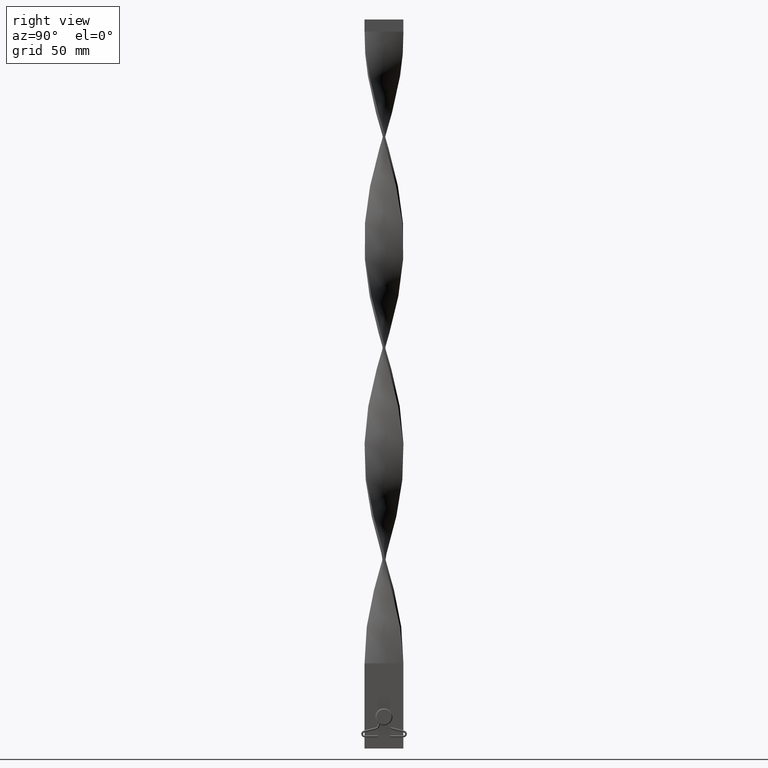
[diagram: clean part render]
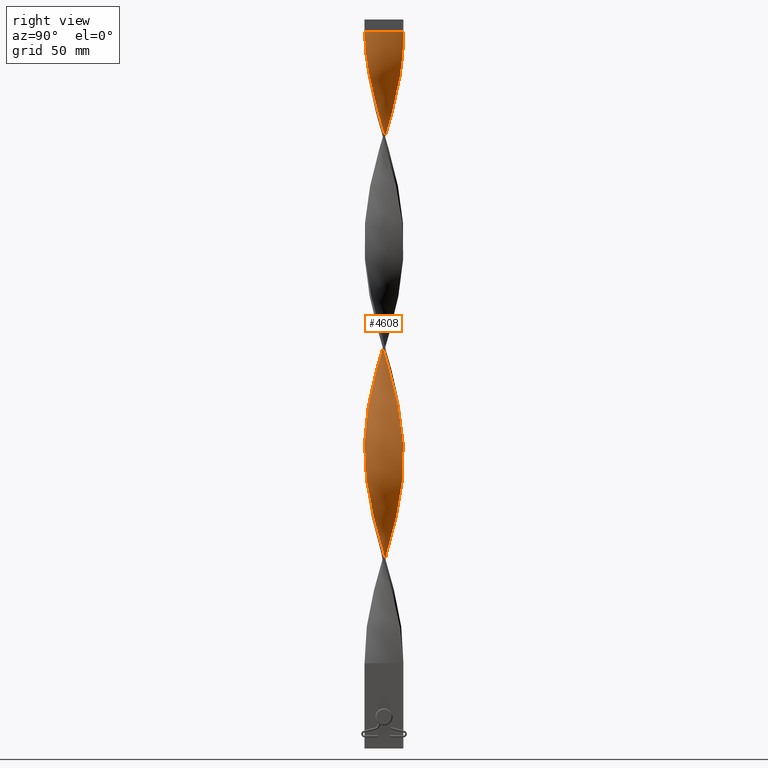
[diagram: same view with one face highlighted and labeled with its STEP entity id]
A machine part, right view. The second image highlights one B-rep face of the part: STEP entity #4608.
In plain terms, the highlighted face is a freeform B-spline surface patch.
Its self-contained STEP definition (entity closure, byte-faithful):
#6 = CARTESIAN_POINT ( 'NONE',  ( 7.453943633173753192, 2.947664213147156875, 69.66666666666667140 ) ) ;
#13 = CARTESIAN_POINT ( 'NONE',  ( -7.762960627548704196, -1.996607696852004565, 69.66666666666667140 ) ) ;
#14 = CARTESIAN_POINT ( 'NONE',  ( 6.010407640085653647, -5.303300858899103964, 100.0000000000000000 ) ) ;
#26 = CARTESIAN_POINT ( 'NONE',  ( -6.178243328853340266, -5.106790515527260155, 147.6666666666666572 ) ) ;
#31 = CARTESIAN_POINT ( 'NONE',  ( -6.427786469485480936, -4.830271518912642392, 58.83333333333334281 ) ) ;
#47 = CARTESIAN_POINT ( 'NONE',  ( -7.104270692806155196, 3.765275523391979018, 180.1666666666666572 ) ) ;
#57 = CARTESIAN_POINT ( 'NONE',  ( -8.000000000000001776, 0.4999999999999983902, 78.33333333333334281 ) ) ;
#60 = EDGE_CURVE ( 'NONE', #2497, #1701, #4039, .T. ) ;
#75 = CARTESIAN_POINT ( 'NONE',  ( 8.039350853412310371, -0.1296136545969460985, 80.50000000000000000 ) ) ;
#82 = CARTESIAN_POINT ( 'NONE',  ( -1.385649445451611284, 7.920097061150125128, 115.1666666666666714 ) ) ;
#98 = CARTESIAN_POINT ( 'NONE',  ( 6.427786469485478271, -4.830271518912637063, 97.83333333333334281 ) ) ;
#105 = CARTESIAN_POINT ( 'NONE',  ( -5.593028810685831687, -5.776330198885577083, 54.50000000000001421 ) ) ;
#118 = CARTESIAN_POINT ( 'NONE',  ( 7.960649146587688740, 1.129613654596949068, 249.5000000000000284 ) ) ;
#129 = CARTESIAN_POINT ( 'NONE',  ( -6.766028581145817178, -4.297773521152313592, 234.3333333333333428 ) ) ;
#137 = CARTESIAN_POINT ( 'NONE',  ( -7.960649146587693181, 1.129613654596946404, 80.50000000000000000 ) ) ;
#145 = CARTESIAN_POINT ( 'NONE',  ( 1.745319890619417391, -7.823289492240983023, 290.6666666666666288 ) ) ;
#153 = CARTESIAN_POINT ( 'NONE',  ( -1.745319890619414949, -7.823289492240990128, 212.6666666666666572 ) ) ;
#159 = CARTESIAN_POINT ( 'NONE',  ( -7.453943633173757632, 2.947664213147155543, 87.00000000000000000 ) ) ;
#165 = CARTESIAN_POINT ( 'NONE',  ( 4.297773521152309151, 6.766028581145814513, 225.6666666666666572 ) ) ;
#172 = CARTESIAN_POINT ( 'NONE',  ( 1.996607696852006342, -7.762960627548704196, 199.6666666666666572 ) ) ;
#178 = CARTESIAN_POINT ( 'NONE',  ( -0.7576315500242803980, 7.979723957281216862, 117.3333333333333286 ) ) ;
#185 = CARTESIAN_POINT ( 'NONE',  ( 0.1296136545969466258, 8.039350853412310371, 210.5000000000000000 ) ) ;
#196 = CARTESIAN_POINT ( 'NONE',  ( -4.077427260010558108, -6.901056943637171592, 221.3333333333333144 ) ) ;
#207 = CARTESIAN_POINT ( 'NONE',  ( -0.1296136545969499010, 8.039350853412313924, 119.5000000000000142 ) ) ;
#250 = CARTESIAN_POINT ( 'NONE',  ( -1.745319890619418279, 7.823289492240983023, 204.0000000000000000 ) ) ;
#254 = CARTESIAN_POINT ( 'NONE',  ( -7.355047443376717453, -3.186420735822192540, 238.6666666666666572 ) ) ;
#276 = CARTESIAN_POINT ( 'NONE',  ( 1.996607696852001013, 7.762960627548700643, 217.0000000000000000 ) ) ;
#280 = CARTESIAN_POINT ( 'NONE',  ( -5.776330198885577083, 5.593028810685830798, 271.1666666666666856 ) ) ;
#281 = CARTESIAN_POINT ( 'NONE',  ( 0.4999999999999992784, 2.666666666666668739, 295.0000000000000568 ) ) ;
#285 = B_SPLINE_CURVE_WITH_KNOTS ( 'NONE', 3,
 ( #597, #1761, #281, #2043 ),
 .UNSPECIFIED., .F., .F.,
 ( 4, 4 ),
 ( 0.000000000000000000, 1.000000000000000000 ),
 .UNSPECIFIED. ) ;
#300 = CARTESIAN_POINT ( 'NONE',  ( -2.607565948252399846, 7.605824193947278822, 284.1666666666667425 ) ) ;
#308 = CARTESIAN_POINT ( 'NONE',  ( -5.106790515527260155, 6.178243328853340266, 191.0000000000000000 ) ) ;
#312 = CARTESIAN_POINT ( 'NONE',  ( -1.745319890619414949, -7.823289492240990128, 212.6666666666666572 ) ) ;
#332 = CARTESIAN_POINT ( 'NONE',  ( 0.5000000000000018874, -7.999999999999998224, 121.6666666666666714 ) ) ;
#333 = CARTESIAN_POINT ( 'NONE',  ( 3.186420735822188544, 7.355047443376715677, 48.00000000000000000 ) ) ;
#336 = CARTESIAN_POINT ( 'NONE',  ( 3.765275523391984791, -7.104270692806156084, 193.1666666666666856 ) ) ;
#353 =( BOUNDED_CURVE ( )  B_SPLINE_CURVE ( 2, ( #1378, #1021, #2520, #2158, #3933, #3616, #1795, #3262, #1099, #2276, #4423, #4097, #760, #1120, #4074, #3023, #6, #1824, #3288, #3685, #1917, #75, #1846, #1144, #3708, #3354, #4468, #2590, #2181, #98, #2565, #3309, #1864, #828, #1186, #735, #1167, #1475, #2209, #2928, #4398, #2653, #1542, #3639, #376, #2609, #4029, #440, #416, #3000, #3667, #397, #26, #1496, #783, #1521, #2627, #3328, #2948, #465, #3732, #805, #3374, #2250, #1563, #4053, #2227, #47, #1213, #4488, #2976, #4447, #1892, #487, #1274, #2342, #893, #577, #1937, #1960, #3070, #185, #1674, #872, #4193, #3420, #1628, #3755, #165, #3807, #3116, #3398, #1586, #4560, #3137, #2319, #1649, #2297, #4607, #118, #2750, #3049, #3461, #3848, #4125, #3779, #4167, #507, #535, #2024, #921, #1253, #4517, #943, #3485, #3092, #1236, #1983, #145, #1319, #2004 ),
 .UNSPECIFIED., .F., .T. ) 
 B_SPLINE_CURVE_WITH_KNOTS ( ( 3, 2, 2, 2, 2, 2, 2, 2, 2, 2, 2, 2, 2, 2, 2, 2, 2, 2, 2, 2, 2, 2, 2, 2, 2, 2, 2, 2, 2, 2, 2, 2, 2, 2, 2, 2, 2, 2, 2, 2, 2, 2, 2, 2, 2, 2, 2, 2, 2, 2, 2, 2, 2, 2, 2, 2, 2, 2, 2, 2, 3 ),
 ( 0.000000000000000000, 0.01250000000000000243, 0.02500000000000000486, 0.03749999999999999861, 0.05000000000000000971, 0.06250000000000000000, 0.07499999999999999722, 0.08749999999999998057, 0.1000000000000000194, 0.1125000000000000028, 0.1250000000000000000, 0.1375000000000000111, 0.1499999999999999944, 0.1625000000000000056, 0.1749999999999999611, 0.1875000000000000000, 0.2000000000000000389, 0.2124999999999999944, 0.2250000000000000056, 0.2374999999999999611, 0.2500000000000000000, 0.2625000000000000111, 0.2750000000000000222, 0.2874999999999999778, 0.2999999999999999889, 0.3125000000000000000, 0.3250000000000000111, 0.3375000000000000777, 0.3499999999999999223, 0.3624999999999999889, 0.3750000000000000000, 0.3875000000000000111, 0.4000000000000000777, 0.4124999999999999223, 0.4249999999999999889, 0.4375000000000000000, 0.4500000000000000111, 0.4625000000000000777, 0.4749999999999999223, 0.4874999999999999889, 0.5000000000000000000, 0.5124999999999999556, 0.5250000000000000222, 0.5374999999999999778, 0.5500000000000000444, 0.5625000000000000000, 0.5749999999999999556, 0.5875000000000000222, 0.5999999999999999778, 0.6125000000000000444, 0.6250000000000000000, 0.6374999999999999556, 0.6500000000000000222, 0.6624999999999999778, 0.6750000000000001554, 0.6875000000000000000, 0.6999999999999998446, 0.7125000000000000222, 0.7249999999999999778, 0.7375000000000001554, 0.7500000000000000000 ),
 .UNSPECIFIED. ) 
 CURVE ( )  GEOMETRIC_REPRESENTATION_ITEM ( )  RATIONAL_B_SPLINE_CURVE ( ( 1.000000000000000000, 0.9969173337331279638, 1.000000000000000000, 0.9969173337331279638, 1.000000000000000000, 0.9969173337331279638, 1.000000000000000000, 0.9969173337331279638, 1.000000000000000000, 0.9969173337331279638, 1.000000000000000000, 0.9969173337331279638, 1.000000000000000000, 0.9969173337331279638, 1.000000000000000000, 0.9969173337331279638, 1.000000000000000000, 0.9969173337331279638, 1.000000000000000000, 0.9969173337331279638, 1.000000000000000000, 0.9969173337331279638, 1.000000000000000000, 0.9969173337331279638, 1.000000000000000000, 0.9969173337331279638, 1.000000000000000000, 0.9969173337331279638, 1.000000000000000000, 0.9969173337331279638, 1.000000000000000000, 0.9969173337331279638, 1.000000000000000000, 0.9969173337331279638, 1.000000000000000000, 0.9969173337331279638, 1.000000000000000000, 0.9969173337331279638, 1.000000000000000000, 0.9969173337331279638, 1.000000000000000000, 0.9969173337331279638, 1.000000000000000000, 0.9969173337331279638, 1.000000000000000000, 0.9969173337331279638, 1.000000000000000000, 0.9969173337331279638, 1.000000000000000000, 0.9969173337331279638, 1.000000000000000000, 0.9969173337331279638, 1.000000000000000000, 0.9969173337331279638, 1.000000000000000000, 0.9969173337331279638, 1.000000000000000000, 0.9969173337331279638, 1.000000000000000000, 0.9969173337331279638, 1.000000000000000000, 0.9969173337331279638, 1.000000000000000000, 0.9969173337331279638, 1.000000000000000000, 0.9969173337331279638, 1.000000000000000000, 0.9969173337331279638, 1.000000000000000000, 0.9969173337331279638, 1.000000000000000000, 0.9969173337331279638, 1.000000000000000000, 0.9969173337331279638, 1.000000000000000000, 0.9969173337331279638, 1.000000000000000000, 0.9969173337331279638, 1.000000000000000000, 0.9969173337331279638, 1.000000000000000000, 0.9969173337331279638, 1.000000000000000000, 0.9969173337331279638, 1.000000000000000000, 0.9969173337331279638, 1.000000000000000000, 0.9969173337331279638, 1.000000000000000000, 0.9969173337331279638, 1.000000000000000000, 0.9969173337331279638, 1.000000000000000000, 0.9969173337331279638, 1.000000000000000000, 0.9969173337331279638, 1.000000000000000000, 0.9969173337331279638, 1.000000000000000000, 0.9969173337331279638, 1.000000000000000000, 0.9969173337331279638, 1.000000000000000000, 0.9969173337331279638, 1.000000000000000000, 0.9969173337331279638, 1.000000000000000000, 0.9969173337331279638, 1.000000000000000000, 0.9969173337331279638, 1.000000000000000000, 0.9969173337331279638, 1.000000000000000000, 0.9969173337331279638, 1.000000000000000000, 0.9969173337331279638, 1.000000000000000000, 0.9969173337331279638, 1.000000000000000000, 0.9969173337331279638, 1.000000000000000000 ) ) 
 REPRESENTATION_ITEM ( '' )  );
#357 = CARTESIAN_POINT ( 'NONE',  ( -2.607565948252394961, -7.605824193947277045, 132.5000000000000000 ) ) ;
#358 = CARTESIAN_POINT ( 'NONE',  ( 5.303300858899104853, 6.010407640085653647, 56.66666666666667140 ) ) ;
#376 = CARTESIAN_POINT ( 'NONE',  ( -1.996607696852000124, -7.762960627548701531, 130.3333333333333428 ) ) ;
#384 = CARTESIAN_POINT ( 'NONE',  ( 7.453943633173753192, 2.947664213147156875, 243.0000000000000000 ) ) ;
#385 = CARTESIAN_POINT ( 'NONE',  ( 7.355047443376715677, -3.186420735822188544, 91.33333333333334281 ) ) ;
#397 = CARTESIAN_POINT ( 'NONE',  ( -5.776330198885570866, -5.593028810685833463, 145.5000000000000568 ) ) ;
#402 = CARTESIAN_POINT ( 'NONE',  ( -7.823289492240990128, 1.745319890619414505, 82.66666666666667140 ) ) ;
#416 = CARTESIAN_POINT ( 'NONE',  ( -4.297773521152308263, -6.766028581145814513, 139.0000000000000000 ) ) ;
#423 = CARTESIAN_POINT ( 'NONE',  ( 7.823289492240990128, -1.745319890619413616, 169.3333333333333428 ) ) ;
#424 = CARTESIAN_POINT ( 'NONE',  ( 4.620552220368688623, -6.580156458821110554, 279.8333333333333144 ) ) ;
#432 = CARTESIAN_POINT ( 'NONE',  ( -0.4999999999999989453, -8.000000000000001776, 35.00000000000000000 ) ) ;
#440 = CARTESIAN_POINT ( 'NONE',  ( -3.765275523391981238, -7.104270692806153420, 136.8333333333333428 ) ) ;
#450 = CARTESIAN_POINT ( 'NONE',  ( -3.186420735822192984, 7.355047443376717453, 108.6666666666666572 ) ) ;
#465 = CARTESIAN_POINT ( 'NONE',  ( -7.960649146587688740, -1.129613654596953509, 162.8333333333333428 ) ) ;
#473 = CARTESIAN_POINT ( 'NONE',  ( 7.762960627548701531, -1.996607696852000569, 260.3333333333333144 ) ) ;
#487 = CARTESIAN_POINT ( 'NONE',  ( -4.620552220368686847, 6.580156458821111443, 193.1666666666666856 ) ) ;
#494 = CARTESIAN_POINT ( 'NONE',  ( 4.297773521152315368, -6.766028581145816290, 191.0000000000000000 ) ) ;
#500 = CARTESIAN_POINT ( 'NONE',  ( -5.776330198885577083, 5.593028810685830798, 97.83333333333334281 ) ) ;
#507 = CARTESIAN_POINT ( 'NONE',  ( 7.104270692806153420, -3.765275523391982126, 266.8333333333333712 ) ) ;
#518 = CARTESIAN_POINT ( 'NONE',  ( 2.607565948252403842, -7.605824193947277934, 197.5000000000000284 ) ) ;
#526 = CARTESIAN_POINT ( 'NONE',  ( -7.355047443376717453, -3.186420735822192540, 65.33333333333332860 ) ) ;
#532 =( BOUNDED_SURFACE ( )  B_SPLINE_SURFACE ( 1, 2, ( 
 ( #1436, #2916, #2529, #3271, #4386, #4361, #333, #1781, #721, #743, #358, #3994, #1805, #1106, #1085, #4748, #2166, #3246, #3650, #4716, #2888, #1484, #3624, #1462, #2552, #2190, #385, #4014, #1832, #3296, #14, #2936, #3545, #2837, #4642, #1435, #3993, #2859, #2528, #4693, #332, #4252, #1461, #1362, #4747, #357, #3889, #979, #4304, #617, #1409, #2474, #1028, #719, #2063, #2088, #3198, #1730, #3940, #2887, #3222, #1804, #2165, #2812, #2114, #2426, #4329, #4360, #1055, #3913, #3573, #3520, #308, #2451, #665, #2502, #3972, #1756, #250, #3600, #3623, #1705, #640, #695, #276, #2141, #3270, #1780, #1385, #3169, #1084, #4281, #3245, #1005, #4670, #4715, #384, #3693, #2635, #2915, #3008, #2285, #4107, #2215, #473, #4475, #3649, #4385, #1831, #3672, #1502, #3382, #2550, #424, #1151, #836, #2597, #3338, #1196, #1924, #1128 ),
 ( #2235, #742, #2258, #3741, #1105, #2573, #2959, #4036, #4060, #105, #2985, #31, #4013, #2189, #3295, #1871, #13, #1483, #2935, #4406, #57, #769, #402, #1852, #3316, #4431, #790, #1529, #4453, #1174, #2614, #4082, #812, #3717, #450, #1903, #3361, #82, #1548, #3100, #4202, #1223, #860, #4222, #1307, #2352, #2326, #929, #2683, #1970, #4567, #2375, #564, #3430, #3031, #951, #3405, #4154, #2704, #1658, #2011, #1570, #1991, #2305, #3059, #2663, #3762, #1636, #3077, #4175, #2397, #1284, #494, #4132, #903, #518, #172, #4499, #3836, #4593, #3469, #2732, #153, #879, #1616, #1943, #196, #2758, #3124, #3856, #3449, #585, #129, #3493, #1595, #2032, #4525, #1242, #3787, #4546, #1261, #3816, #543, #1722, #1428, #1329, #2806, #3908, #2445, #4664, #3594, #3935, #1079, #3240, #3515, #300, #4276, #2469, #4616, #1023, #3191 ) ),
 .UNSPECIFIED., .F., .F., .F. ) 
 B_SPLINE_SURFACE_WITH_KNOTS ( ( 2, 2 ),
 ( 3, 2, 2, 2, 2, 2, 2, 2, 2, 2, 2, 2, 2, 2, 2, 2, 2, 2, 2, 2, 2, 2, 2, 2, 2, 2, 2, 2, 2, 2, 2, 2, 2, 2, 2, 2, 2, 2, 2, 2, 2, 2, 2, 2, 2, 2, 2, 2, 2, 2, 2, 2, 2, 2, 2, 2, 2, 2, 2, 2, 3 ),
 ( 0.000000000000000000, 1.000000000000000000 ),
 ( 0.000000000000000000, 0.01250000000000000069, 0.02500000000000000139, 0.03749999999999999861, 0.05000000000000000278, 0.06250000000000000000, 0.07499999999999999722, 0.08749999999999999445, 0.1000000000000000056, 0.1125000000000000028, 0.1250000000000000000, 0.1375000000000000111, 0.1499999999999999944, 0.1625000000000000056, 0.1749999999999999889, 0.1875000000000000000, 0.2000000000000000111, 0.2124999999999999944, 0.2250000000000000056, 0.2374999999999999889, 0.2500000000000000000, 0.2625000000000000111, 0.2750000000000000222, 0.2874999999999999778, 0.2999999999999999889, 0.3125000000000000000, 0.3250000000000000111, 0.3375000000000000222, 0.3499999999999999778, 0.3624999999999999889, 0.3750000000000000000, 0.3875000000000000111, 0.4000000000000000222, 0.4124999999999999778, 0.4249999999999999889, 0.4375000000000000000, 0.4500000000000000111, 0.4625000000000000222, 0.4749999999999999778, 0.4874999999999999889, 0.5000000000000000000, 0.5124999999999999556, 0.5250000000000000222, 0.5374999999999999778, 0.5500000000000000444, 0.5625000000000000000, 0.5749999999999999556, 0.5875000000000000222, 0.5999999999999999778, 0.6125000000000000444, 0.6250000000000000000, 0.6374999999999999556, 0.6500000000000000222, 0.6624999999999999778, 0.6750000000000000444, 0.6875000000000000000, 0.6999999999999999556, 0.7125000000000000222, 0.7249999999999999778, 0.7375000000000000444, 0.7500000000000000000 ),
 .UNSPECIFIED. ) 
 GEOMETRIC_REPRESENTATION_ITEM ( )  RATIONAL_B_SPLINE_SURFACE ( (
 ( 1.000000000000000000, 0.9969173337331279638, 1.000000000000000000, 0.9969173337331279638, 1.000000000000000000, 0.9969173337331279638, 1.000000000000000000, 0.9969173337331279638, 1.000000000000000000, 0.9969173337331279638, 1.000000000000000000, 0.9969173337331279638, 1.000000000000000000, 0.9969173337331279638, 1.000000000000000000, 0.9969173337331279638, 1.000000000000000000, 0.9969173337331279638, 1.000000000000000000, 0.9969173337331279638, 1.000000000000000000, 0.9969173337331279638, 1.000000000000000000, 0.9969173337331279638, 1.000000000000000000, 0.9969173337331279638, 1.000000000000000000, 0.9969173337331279638, 1.000000000000000000, 0.9969173337331279638, 1.000000000000000000, 0.9969173337331279638, 1.000000000000000000, 0.9969173337331279638, 1.000000000000000000, 0.9969173337331279638, 1.000000000000000000, 0.9969173337331279638, 1.000000000000000000, 0.9969173337331279638, 1.000000000000000000, 0.9969173337331279638, 1.000000000000000000, 0.9969173337331279638, 1.000000000000000000, 0.9969173337331279638, 1.000000000000000000, 0.9969173337331279638, 1.000000000000000000, 0.9969173337331279638, 1.000000000000000000, 0.9969173337331279638, 1.000000000000000000, 0.9969173337331279638, 1.000000000000000000, 0.9969173337331279638, 1.000000000000000000, 0.9969173337331279638, 1.000000000000000000, 0.9969173337331279638, 1.000000000000000000, 0.9969173337331279638, 1.000000000000000000, 0.9969173337331279638, 1.000000000000000000, 0.9969173337331279638, 1.000000000000000000, 0.9969173337331279638, 1.000000000000000000, 0.9969173337331279638, 1.000000000000000000, 0.9969173337331279638, 1.000000000000000000, 0.9969173337331279638, 1.000000000000000000, 0.9969173337331279638, 1.000000000000000000, 0.9969173337331279638, 1.000000000000000000, 0.9969173337331279638, 1.000000000000000000, 0.9969173337331279638, 1.000000000000000000, 0.9969173337331279638, 1.000000000000000000, 0.9969173337331279638, 1.000000000000000000, 0.9969173337331279638, 1.000000000000000000, 0.9969173337331279638, 1.000000000000000000, 0.9969173337331279638, 1.000000000000000000, 0.9969173337331279638, 1.000000000000000000, 0.9969173337331279638, 1.000000000000000000, 0.9969173337331279638, 1.000000000000000000, 0.9969173337331279638, 1.000000000000000000, 0.9969173337331279638, 1.000000000000000000, 0.9969173337331279638, 1.000000000000000000, 0.9969173337331279638, 1.000000000000000000, 0.9969173337331279638, 1.000000000000000000, 0.9969173337331279638, 1.000000000000000000, 0.9969173337331279638, 1.000000000000000000, 0.9969173337331279638, 1.000000000000000000, 0.9969173337331279638, 1.000000000000000000, 0.9969173337331279638, 1.000000000000000000, 0.9969173337331279638, 1.000000000000000000),
 ( 1.000000000000000000, 0.9969173337331279638, 1.000000000000000000, 0.9969173337331279638, 1.000000000000000000, 0.9969173337331279638, 1.000000000000000000, 0.9969173337331279638, 1.000000000000000000, 0.9969173337331279638, 1.000000000000000000, 0.9969173337331279638, 1.000000000000000000, 0.9969173337331279638, 1.000000000000000000, 0.9969173337331279638, 1.000000000000000000, 0.9969173337331279638, 1.000000000000000000, 0.9969173337331279638, 1.000000000000000000, 0.9969173337331279638, 1.000000000000000000, 0.9969173337331279638, 1.000000000000000000, 0.9969173337331279638, 1.000000000000000000, 0.9969173337331279638, 1.000000000000000000, 0.9969173337331279638, 1.000000000000000000, 0.9969173337331279638, 1.000000000000000000, 0.9969173337331279638, 1.000000000000000000, 0.9969173337331279638, 1.000000000000000000, 0.9969173337331279638, 1.000000000000000000, 0.9969173337331279638, 1.000000000000000000, 0.9969173337331279638, 1.000000000000000000, 0.9969173337331279638, 1.000000000000000000, 0.9969173337331279638, 1.000000000000000000, 0.9969173337331279638, 1.000000000000000000, 0.9969173337331279638, 1.000000000000000000, 0.9969173337331279638, 1.000000000000000000, 0.9969173337331279638, 1.000000000000000000, 0.9969173337331279638, 1.000000000000000000, 0.9969173337331279638, 1.000000000000000000, 0.9969173337331279638, 1.000000000000000000, 0.9969173337331279638, 1.000000000000000000, 0.9969173337331279638, 1.000000000000000000, 0.9969173337331279638, 1.000000000000000000, 0.9969173337331279638, 1.000000000000000000, 0.9969173337331279638, 1.000000000000000000, 0.9969173337331279638, 1.000000000000000000, 0.9969173337331279638, 1.000000000000000000, 0.9969173337331279638, 1.000000000000000000, 0.9969173337331279638, 1.000000000000000000, 0.9969173337331279638, 1.000000000000000000, 0.9969173337331279638, 1.000000000000000000, 0.9969173337331279638, 1.000000000000000000, 0.9969173337331279638, 1.000000000000000000, 0.9969173337331279638, 1.000000000000000000, 0.9969173337331279638, 1.000000000000000000, 0.9969173337331279638, 1.000000000000000000, 0.9969173337331279638, 1.000000000000000000, 0.9969173337331279638, 1.000000000000000000, 0.9969173337331279638, 1.000000000000000000, 0.9969173337331279638, 1.000000000000000000, 0.9969173337331279638, 1.000000000000000000, 0.9969173337331279638, 1.000000000000000000, 0.9969173337331279638, 1.000000000000000000, 0.9969173337331279638, 1.000000000000000000, 0.9969173337331279638, 1.000000000000000000, 0.9969173337331279638, 1.000000000000000000, 0.9969173337331279638, 1.000000000000000000, 0.9969173337331279638, 1.000000000000000000, 0.9969173337331279638, 1.000000000000000000, 0.9969173337331279638, 1.000000000000000000) ) ) 
 REPRESENTATION_ITEM ( '' )  SURFACE ( )  );
#535 = CARTESIAN_POINT ( 'NONE',  ( 6.766028581145814513, -4.297773521152308263, 269.0000000000000000 ) ) ;
#543 = CARTESIAN_POINT ( 'NONE',  ( -7.823289492240990128, 1.745319890619414505, 256.0000000000000000 ) ) ;
#548 = CARTESIAN_POINT ( 'NONE',  ( 0.4999999999999979461, 8.000000000000001776, 121.6666666666666714 ) ) ;
#564 = CARTESIAN_POINT ( 'NONE',  ( 6.766028581145816290, 4.297773521152314480, 147.6666666666666572 ) ) ;
#571 = CARTESIAN_POINT ( 'NONE',  ( -5.106790515527260155, -6.178243328853345595, 52.33333333333333570 ) ) ;
#577 = CARTESIAN_POINT ( 'NONE',  ( -2.361026126641882605, 7.685929837894281746, 201.8333333333333712 ) ) ;
#585 = CARTESIAN_POINT ( 'NONE',  ( -6.427786469485480936, -4.830271518912642392, 232.1666666666666288 ) ) ;
#596 = CARTESIAN_POINT ( 'NONE',  ( -0.4999999999999989453, -8.000000000000001776, 35.00000000000000000 ) ) ;
#597 = CARTESIAN_POINT ( 'NONE',  ( 0.5000000000000018874, -7.999999999999998224, 295.0000000000000568 ) ) ;
#617 = CARTESIAN_POINT ( 'NONE',  ( -4.830271518912637951, -6.427786469485480048, 141.1666666666666288 ) ) ;
#620 = CARTESIAN_POINT ( 'NONE',  ( 3.186420735822193873, -7.355047443376717453, 195.3333333333333428 ) ) ;
#640 = CARTESIAN_POINT ( 'NONE',  ( 0.7576315500242770673, 7.979723957281216862, 212.6666666666666572 ) ) ;
#643 = CARTESIAN_POINT ( 'NONE',  ( 6.178243328853346483, -5.106790515527257490, 182.3333333333333144 ) ) ;
#665 = CARTESIAN_POINT ( 'NONE',  ( -4.077427260010559884, 6.901056943637166263, 195.3333333333333428 ) ) ;
#670 = CARTESIAN_POINT ( 'NONE',  ( -2.361026126641883049, -7.685929837894284411, 214.8333333333333428 ) ) ;
#695 = CARTESIAN_POINT ( 'NONE',  ( 1.385649445451607509, 7.920097061150123352, 214.8333333333333428 ) ) ;
#698 = CARTESIAN_POINT ( 'NONE',  ( -3.534302299652428925, -7.221957428453230854, 219.1666666666666856 ) ) ;
#719 = CARTESIAN_POINT ( 'NONE',  ( -6.580156458821112331, -4.620552220368685958, 149.8333333333333712 ) ) ;
#721 = CARTESIAN_POINT ( 'NONE',  ( 4.297773521152309151, 6.766028581145814513, 52.33333333333333570 ) ) ;
#735 = CARTESIAN_POINT ( 'NONE',  ( 3.534302299652430257, -7.221957428453226413, 110.8333333333333570 ) ) ;
#742 = CARTESIAN_POINT ( 'NONE',  ( -1.129613654596947070, -7.960649146587693181, 37.16666666666667140 ) ) ;
#743 = CARTESIAN_POINT ( 'NONE',  ( 4.830271518912638840, 6.427786469485479159, 54.50000000000001421 ) ) ;
#760 = CARTESIAN_POINT ( 'NONE',  ( 6.178243328853341154, 5.106790515527259267, 61.00000000000000000 ) ) ;
#769 = CARTESIAN_POINT ( 'NONE',  ( -7.960649146587693181, 1.129613654596946404, 80.50000000000000000 ) ) ;
#783 = CARTESIAN_POINT ( 'NONE',  ( -6.901056943637166263, -4.077427260010558996, 152.0000000000000000 ) ) ;
#789 = CARTESIAN_POINT ( 'NONE',  ( -7.605824193947279710, -2.607565948252399401, 240.8333333333333428 ) ) ;
#790 = CARTESIAN_POINT ( 'NONE',  ( -6.901056943637171592, 4.077427260010558108, 91.33333333333334281 ) ) ;
#805 = CARTESIAN_POINT ( 'NONE',  ( -8.039350853412310371, 0.1296136545969486797, 167.1666666666666572 ) ) ;
#812 = CARTESIAN_POINT ( 'NONE',  ( -4.297773521152314480, 6.766028581145816290, 104.3333333333333286 ) ) ;
#828 = CARTESIAN_POINT ( 'NONE',  ( 4.620552220368688623, -6.580156458821110554, 106.5000000000000142 ) ) ;
#836 = CARTESIAN_POINT ( 'NONE',  ( 3.534302299652430257, -7.221957428453226413, 284.1666666666667425 ) ) ;
#837 = EDGE_CURVE ( 'NONE', #1701, #3357, #4137, .T. ) ;
#860 = CARTESIAN_POINT ( 'NONE',  ( 1.745319890619414060, 7.823289492240990128, 126.0000000000000000 ) ) ;
#872 = CARTESIAN_POINT ( 'NONE',  ( 1.385649445451607287, 7.920097061150124240, 214.8333333333333428 ) ) ;
#879 = CARTESIAN_POINT ( 'NONE',  ( -2.361026126641883049, -7.685929837894284411, 214.8333333333333428 ) ) ;
#885 = CARTESIAN_POINT ( 'NONE',  ( 6.010407640085654535, 5.303300858899109294, 143.3333333333333144 ) ) ;
#893 = CARTESIAN_POINT ( 'NONE',  ( -2.947664213147158652, 7.453943633173753192, 199.6666666666666572 ) ) ;
#895 = CARTESIAN_POINT ( 'NONE',  ( 0.5000000000000018874, -7.999999999999998224, 295.0000000000000568 ) ) ;
#903 = CARTESIAN_POINT ( 'NONE',  ( 3.186420735822193873, -7.355047443376717453, 195.3333333333333428 ) ) ;
#912 = CARTESIAN_POINT ( 'NONE',  ( 7.605824193947278822, 2.607565948252403398, 154.1666666666667140 ) ) ;
#921 = CARTESIAN_POINT ( 'NONE',  ( 6.010407640085653647, -5.303300858899103964, 273.3333333333333144 ) ) ;
#929 = CARTESIAN_POINT ( 'NONE',  ( 4.620552220368686847, 6.580156458821115883, 136.8333333333333144 ) ) ;
#936 = CARTESIAN_POINT ( 'NONE',  ( -4.620552220368687735, -6.580156458821115883, 50.16666666666667140 ) ) ;
#943 = CARTESIAN_POINT ( 'NONE',  ( 4.620552220368688623, -6.580156458821110554, 279.8333333333333144 ) ) ;
#951 = CARTESIAN_POINT ( 'NONE',  ( 7.605824193947277934, 2.607565948252403398, 154.1666666666667140 ) ) ;
#957 = CARTESIAN_POINT ( 'NONE',  ( 3.534302299652428037, 7.221957428453231742, 132.5000000000000000 ) ) ;
#979 = CARTESIAN_POINT ( 'NONE',  ( -3.765275523391981682, -7.104270692806154308, 136.8333333333333144 ) ) ;
#985 = CARTESIAN_POINT ( 'NONE',  ( 5.303300858899110182, -6.010407640085653647, 186.6666666666666856 ) ) ;
#1005 = CARTESIAN_POINT ( 'NONE',  ( 6.580156458821110554, 4.620552220368688623, 236.5000000000000284 ) ) ;
#1009 = CARTESIAN_POINT ( 'NONE',  ( 7.920097061150127793, 1.385649445451608175, 158.5000000000000000 ) ) ;
#1021 = CARTESIAN_POINT ( 'NONE',  ( 0.1296136545969466258, 8.039350853412310371, 37.16666666666667140 ) ) ;
#1023 = CARTESIAN_POINT ( 'NONE',  ( -0.1296136545969499287, 8.039350853412313924, 292.8333333333332575 ) ) ;
#1028 = CARTESIAN_POINT ( 'NONE',  ( -6.178243328853340266, -5.106790515527260155, 147.6666666666666572 ) ) ;
#1031 = CARTESIAN_POINT ( 'NONE',  ( 4.297773521152315368, -6.766028581145816290, 191.0000000000000000 ) ) ;
#1037 = ORIENTED_EDGE ( 'NONE', *, *, #3083, .F. ) ;
#1055 = CARTESIAN_POINT ( 'NONE',  ( -6.766028581145815401, 4.297773521152307374, 182.3333333333333144 ) ) ;
#1059 = CARTESIAN_POINT ( 'NONE',  ( -7.762960627548704196, -1.996607696852004565, 243.0000000000000000 ) ) ;
#1079 = CARTESIAN_POINT ( 'NONE',  ( -4.297773521152314480, 6.766028581145816290, 277.6666666666666288 ) ) ;
#1084 = CARTESIAN_POINT ( 'NONE',  ( 5.303300858899104853, 6.010407640085653647, 229.9999999999999716 ) ) ;
#1085 = CARTESIAN_POINT ( 'NONE',  ( 6.901056943637166263, 4.077427260010558108, 65.33333333333332860 ) ) ;
#1087 = CARTESIAN_POINT ( 'NONE',  ( -5.303300858899108405, 6.010407640085654535, 273.3333333333333144 ) ) ;
#1099 = CARTESIAN_POINT ( 'NONE',  ( 4.297773521152309151, 6.766028581145814513, 52.33333333333333570 ) ) ;
#1105 = CARTESIAN_POINT ( 'NONE',  ( -2.947664213147155543, -7.453943633173756744, 43.66666666666667140 ) ) ;
#1106 = CARTESIAN_POINT ( 'NONE',  ( 6.580156458821110554, 4.620552220368688623, 63.16666666666669272 ) ) ;
#1120 = CARTESIAN_POINT ( 'NONE',  ( 6.580156458821110554, 4.620552220368688623, 63.16666666666669272 ) ) ;
#1128 = CARTESIAN_POINT ( 'NONE',  ( 0.5000000000000018874, -7.999999999999998224, 295.0000000000000568 ) ) ;
#1144 = CARTESIAN_POINT ( 'NONE',  ( 7.920097061150124240, -1.385649445451606843, 84.83333333333335702 ) ) ;
#1151 = CARTESIAN_POINT ( 'NONE',  ( 4.077427260010558996, -6.901056943637166263, 282.0000000000000000 ) ) ;
#1167 = CARTESIAN_POINT ( 'NONE',  ( 2.947664213147157319, -7.453943633173753192, 113.0000000000000000 ) ) ;
#1169 = VERTEX_POINT ( 'NONE', #895 ) ;
#1174 = CARTESIAN_POINT ( 'NONE',  ( -5.776330198885577083, 5.593028810685830798, 97.83333333333334281 ) ) ;
#1186 = CARTESIAN_POINT ( 'NONE',  ( 4.077427260010558996, -6.901056943637166263, 108.6666666666666572 ) ) ;
#1196 = CARTESIAN_POINT ( 'NONE',  ( 1.745319890619417391, -7.823289492240983023, 290.6666666666666288 ) ) ;
#1213 = CARTESIAN_POINT ( 'NONE',  ( -6.766028581145815401, 4.297773521152307374, 182.3333333333333144 ) ) ;
#1223 = CARTESIAN_POINT ( 'NONE',  ( 1.129613654596945960, 7.960649146587693181, 123.8333333333333570 ) ) ;
#1236 = CARTESIAN_POINT ( 'NONE',  ( 2.947664213147157319, -7.453943633173753192, 286.3333333333333144 ) ) ;
#1242 = CARTESIAN_POINT ( 'NONE',  ( -7.920097061150125128, -1.385649445451610839, 245.1666666666666856 ) ) ;
#1247 = CARTESIAN_POINT ( 'NONE',  ( 5.106790515527259267, 6.178243328853345595, 139.0000000000000000 ) ) ;
#1253 = CARTESIAN_POINT ( 'NONE',  ( 5.593028810685830798, -5.776330198885573530, 275.5000000000000000 ) ) ;
#1261 = CARTESIAN_POINT ( 'NONE',  ( -8.000000000000001776, 0.4999999999999983902, 251.6666666666666572 ) ) ;
#1268 = CARTESIAN_POINT ( 'NONE',  ( 7.355047443376717453, 3.186420735822193429, 152.0000000000000000 ) ) ;
#1274 = CARTESIAN_POINT ( 'NONE',  ( -4.077427260010559884, 6.901056943637166263, 195.3333333333333428 ) ) ;
#1284 = CARTESIAN_POINT ( 'NONE',  ( 4.830271518912646833, -6.427786469485477383, 188.8333333333333144 ) ) ;
#1293 = CARTESIAN_POINT ( 'NONE',  ( -6.178243328853345595, 5.106790515527259267, 95.66666666666665719 ) ) ;
#1307 = CARTESIAN_POINT ( 'NONE',  ( 2.947664213147154655, 7.453943633173757632, 130.3333333333333428 ) ) ;
#1313 = CARTESIAN_POINT ( 'NONE',  ( -7.685929837894285299, 2.361026126641883049, 84.83333333333335702 ) ) ;
#1319 = CARTESIAN_POINT ( 'NONE',  ( 1.129613654596949512, -7.960649146587688740, 292.8333333333332575 ) ) ;
#1329 = CARTESIAN_POINT ( 'NONE',  ( -7.221957428453230854, 3.534302299652428481, 262.5000000000000000 ) ) ;
#1335 = CARTESIAN_POINT ( 'NONE',  ( -4.077427260010558108, -6.901056943637171592, 221.3333333333333144 ) ) ;
#1362 = CARTESIAN_POINT ( 'NONE',  ( -1.385649445451606621, -7.920097061150123352, 128.1666666666666856 ) ) ;
#1365 = CARTESIAN_POINT ( 'NONE',  ( -8.000000000000001776, 0.4999999999999983902, 251.6666666666666572 ) ) ;
#1378 = CARTESIAN_POINT ( 'NONE',  ( -0.5000000000000008882, 7.999999999999998224, 35.00000000000000000 ) ) ;
#1385 = CARTESIAN_POINT ( 'NONE',  ( 4.297773521152309151, 6.766028581145814513, 225.6666666666666572 ) ) ;
#1389 = CARTESIAN_POINT ( 'NONE',  ( -7.221957428453230854, 3.534302299652428481, 262.5000000000000000 ) ) ;
#1409 = CARTESIAN_POINT ( 'NONE',  ( -5.303300858899103964, -6.010407640085654535, 143.3333333333333144 ) ) ;
#1413 = CARTESIAN_POINT ( 'NONE',  ( 6.580156458821117660, -4.620552220368684182, 180.1666666666666572 ) ) ;
#1428 = CARTESIAN_POINT ( 'NONE',  ( -7.453943633173757632, 2.947664213147155543, 260.3333333333333144 ) ) ;
#1435 = CARTESIAN_POINT ( 'NONE',  ( 3.534302299652430257, -7.221957428453226413, 110.8333333333333428 ) ) ;
#1436 = CARTESIAN_POINT ( 'NONE',  ( -0.5000000000000008882, 7.999999999999998224, 35.00000000000000000 ) ) ;
#1439 = CARTESIAN_POINT ( 'NONE',  ( -2.607565948252399846, 7.605824193947279710, 284.1666666666667425 ) ) ;
#1461 = CARTESIAN_POINT ( 'NONE',  ( -0.7576315500242757350, -7.979723957281216862, 126.0000000000000000 ) ) ;
#1462 = CARTESIAN_POINT ( 'NONE',  ( 7.920097061150123352, -1.385649445451607065, 84.83333333333335702 ) ) ;
#1475 = CARTESIAN_POINT ( 'NONE',  ( 2.361026126641885270, -7.685929837894280858, 115.1666666666666714 ) ) ;
#1483 = CARTESIAN_POINT ( 'NONE',  ( -7.920097061150125128, -1.385649445451610839, 71.83333333333332860 ) ) ;
#1484 = CARTESIAN_POINT ( 'NONE',  ( 8.039350853412310371, -0.1296136545969460707, 80.50000000000000000 ) ) ;
#1496 = CARTESIAN_POINT ( 'NONE',  ( -6.580156458821112331, -4.620552220368685958, 149.8333333333333428 ) ) ;
#1502 = CARTESIAN_POINT ( 'NONE',  ( 6.010407640085653647, -5.303300858899103964, 273.3333333333333144 ) ) ;
#1521 = CARTESIAN_POINT ( 'NONE',  ( -7.221957428453223748, -3.534302299652433366, 154.1666666666667140 ) ) ;
#1529 = CARTESIAN_POINT ( 'NONE',  ( -6.580156458821115883, 4.620552220368687735, 93.49999999999998579 ) ) ;
#1542 = CARTESIAN_POINT ( 'NONE',  ( -0.7576315500242757350, -7.979723957281216862, 126.0000000000000000 ) ) ;
#1548 = CARTESIAN_POINT ( 'NONE',  ( -0.7576315500242803980, 7.979723957281216862, 117.3333333333333286 ) ) ;
#1563 = CARTESIAN_POINT ( 'NONE',  ( -7.762960627548701531, 1.996607696851999680, 173.6666666666666572 ) ) ;
#1570 = CARTESIAN_POINT ( 'NONE',  ( 7.960649146587691405, -1.129613654596949290, 167.1666666666666572 ) ) ;
#1586 = CARTESIAN_POINT ( 'NONE',  ( 6.178243328853341154, 5.106790515527259267, 234.3333333333333428 ) ) ;
#1595 = CARTESIAN_POINT ( 'NONE',  ( -7.355047443376717453, -3.186420735822192540, 238.6666666666666572 ) ) ;
#1603 = CARTESIAN_POINT ( 'NONE',  ( -1.996607696852005009, 7.762960627548704196, 113.0000000000000000 ) ) ;
#1616 = CARTESIAN_POINT ( 'NONE',  ( -2.947664213147155543, -7.453943633173756744, 217.0000000000000000 ) ) ;
#1622 = CARTESIAN_POINT ( 'NONE',  ( 7.104270692806156973, 3.765275523391983903, 149.8333333333333428 ) ) ;
#1628 = CARTESIAN_POINT ( 'NONE',  ( 3.186420735822188544, 7.355047443376715677, 221.3333333333333144 ) ) ;
#1636 = CARTESIAN_POINT ( 'NONE',  ( 6.580156458821117660, -4.620552220368684182, 180.1666666666666856 ) ) ;
#1649 = CARTESIAN_POINT ( 'NONE',  ( 7.453943633173753192, 2.947664213147156875, 243.0000000000000000 ) ) ;
#1658 = CARTESIAN_POINT ( 'NONE',  ( 8.039350853412313924, 0.1296136545969538700, 162.8333333333333428 ) ) ;
#1667 = CARTESIAN_POINT ( 'NONE',  ( -5.593028810685831687, -5.776330198885577083, 54.50000000000001421 ) ) ;
#1674 = CARTESIAN_POINT ( 'NONE',  ( 0.7576315500242770673, 7.979723957281216862, 212.6666666666666572 ) ) ;
#1701 = VERTEX_POINT ( 'NONE', #432 ) ;
#1705 = CARTESIAN_POINT ( 'NONE',  ( 0.1296136545969466258, 8.039350853412310371, 210.4999999999999716 ) ) ;
#1708 = CARTESIAN_POINT ( 'NONE',  ( -7.920097061150126017, -1.385649445451610839, 245.1666666666666856 ) ) ;
#1722 = CARTESIAN_POINT ( 'NONE',  ( -7.685929837894285299, 2.361026126641883049, 258.1666666666666288 ) ) ;
#1730 = CARTESIAN_POINT ( 'NONE',  ( -7.685929837894281746, -2.361026126641882161, 158.5000000000000000 ) ) ;
#1733 = CARTESIAN_POINT ( 'NONE',  ( -3.186420735822192984, 7.355047443376717453, 282.0000000000000000 ) ) ;
#1756 = CARTESIAN_POINT ( 'NONE',  ( -2.361026126641882605, 7.685929837894281746, 201.8333333333333712 ) ) ;
#1760 = CARTESIAN_POINT ( 'NONE',  ( 1.996607696852006342, -7.762960627548704196, 199.6666666666666572 ) ) ;
#1761 = CARTESIAN_POINT ( 'NONE',  ( 0.5000000000000005551, -2.666666666666665186, 295.0000000000000568 ) ) ;
#1780 = CARTESIAN_POINT ( 'NONE',  ( 3.765275523391982571, 7.104270692806154308, 223.5000000000000284 ) ) ;
#1781 = CARTESIAN_POINT ( 'NONE',  ( 3.765275523391982571, 7.104270692806154308, 50.16666666666667140 ) ) ;
#1783 = CARTESIAN_POINT ( 'NONE',  ( -4.297773521152314480, 6.766028581145816290, 277.6666666666666288 ) ) ;
#1795 = CARTESIAN_POINT ( 'NONE',  ( 3.186420735822188544, 7.355047443376715677, 48.00000000000000000 ) ) ;
#1804 = CARTESIAN_POINT ( 'NONE',  ( -8.039350853412310371, 0.1296136545969487075, 167.1666666666666572 ) ) ;
#1805 = CARTESIAN_POINT ( 'NONE',  ( 6.178243328853341154, 5.106790515527259267, 61.00000000000000000 ) ) ;
#1824 = CARTESIAN_POINT ( 'NONE',  ( 7.685929837894280858, 2.361026126641884826, 71.83333333333332860 ) ) ;
#1831 = CARTESIAN_POINT ( 'NONE',  ( 6.766028581145814513, -4.297773521152308263, 269.0000000000000000 ) ) ;
#1832 = CARTESIAN_POINT ( 'NONE',  ( 6.766028581145814513, -4.297773521152308263, 95.66666666666665719 ) ) ;
#1846 = CARTESIAN_POINT ( 'NONE',  ( 7.979723957281216862, -0.7576315500242764012, 82.66666666666667140 ) ) ;
#1852 = CARTESIAN_POINT ( 'NONE',  ( -7.685929837894285299, 2.361026126641883049, 84.83333333333335702 ) ) ;
#1864 = CARTESIAN_POINT ( 'NONE',  ( 5.106790515527260155, -6.178243328853340266, 104.3333333333333286 ) ) ;
#1870 = CARTESIAN_POINT ( 'NONE',  ( 7.221957428453229966, -3.534302299652430701, 175.8333333333333712 ) ) ;
#1871 = CARTESIAN_POINT ( 'NONE',  ( -7.605824193947278822, -2.607565948252399401, 67.50000000000000000 ) ) ;
#1892 = CARTESIAN_POINT ( 'NONE',  ( -5.106790515527260155, 6.178243328853340266, 191.0000000000000000 ) ) ;
#1903 = CARTESIAN_POINT ( 'NONE',  ( -2.607565948252399846, 7.605824193947278822, 110.8333333333333428 ) ) ;
#1917 = CARTESIAN_POINT ( 'NONE',  ( 7.999999999999998224, 0.5000000000000014433, 78.33333333333334281 ) ) ;
#1924 = CARTESIAN_POINT ( 'NONE',  ( 1.129613654596949734, -7.960649146587688740, 292.8333333333332575 ) ) ;
#1937 = CARTESIAN_POINT ( 'NONE',  ( -1.745319890619418279, 7.823289492240983023, 204.0000000000000000 ) ) ;
#1943 = CARTESIAN_POINT ( 'NONE',  ( -3.534302299652428925, -7.221957428453230854, 219.1666666666666856 ) ) ;
#1952 = CARTESIAN_POINT ( 'NONE',  ( -8.000000000000001776, 0.4999999999999983902, 78.33333333333334281 ) ) ;
#1960 = CARTESIAN_POINT ( 'NONE',  ( -1.129613654596953953, 7.960649146587688740, 206.1666666666666572 ) ) ;
#1970 = CARTESIAN_POINT ( 'NONE',  ( 5.593028810685830798, 5.776330198885578859, 141.1666666666666288 ) ) ;
#1983 = CARTESIAN_POINT ( 'NONE',  ( 2.361026126641885270, -7.685929837894280858, 288.5000000000000000 ) ) ;
#1991 = CARTESIAN_POINT ( 'NONE',  ( 7.823289492240990128, -1.745319890619413616, 169.3333333333333428 ) ) ;
#1996 = CARTESIAN_POINT ( 'NONE',  ( 7.762960627548704196, 1.996607696852005454, 156.3333333333333144 ) ) ;
#2001 = ORIENTED_EDGE ( 'NONE', *, *, #3366, .F. ) ;
#2004 = CARTESIAN_POINT ( 'NONE',  ( 0.5000000000000018874, -7.999999999999998224, 295.0000000000000568 ) ) ;
#2011 = CARTESIAN_POINT ( 'NONE',  ( 8.000000000000001776, -0.4999999999999973910, 165.0000000000000000 ) ) ;
#2018 = CARTESIAN_POINT ( 'NONE',  ( -2.947664213147155543, -7.453943633173756744, 43.66666666666667140 ) ) ;
#2024 = CARTESIAN_POINT ( 'NONE',  ( 6.427786469485478271, -4.830271518912637063, 271.1666666666666856 ) ) ;
#2032 = CARTESIAN_POINT ( 'NONE',  ( -7.605824193947278822, -2.607565948252399401, 240.8333333333333428 ) ) ;
#2042 = CARTESIAN_POINT ( 'NONE',  ( -6.766028581145817178, -4.297773521152313592, 61.00000000000000000 ) ) ;
#2043 = CARTESIAN_POINT ( 'NONE',  ( 0.4999999999999979461, 8.000000000000001776, 295.0000000000000568 ) ) ;
#2063 = CARTESIAN_POINT ( 'NONE',  ( -6.901056943637166263, -4.077427260010558996, 152.0000000000000000 ) ) ;
#2066 = CARTESIAN_POINT ( 'NONE',  ( -5.106790515527260155, -6.178243328853345595, 225.6666666666666572 ) ) ;
#2088 = CARTESIAN_POINT ( 'NONE',  ( -7.221957428453223748, -3.534302299652433366, 154.1666666666667140 ) ) ;
#2092 = CARTESIAN_POINT ( 'NONE',  ( -7.685929837894285299, 2.361026126641883049, 258.1666666666666288 ) ) ;
#2114 = CARTESIAN_POINT ( 'NONE',  ( -7.762960627548701531, 1.996607696851999680, 173.6666666666666572 ) ) ;
#2118 = CARTESIAN_POINT ( 'NONE',  ( 4.830271518912645945, -6.427786469485477383, 188.8333333333333144 ) ) ;
#2141 = CARTESIAN_POINT ( 'NONE',  ( 2.607565948252395849, 7.605824193947276157, 219.1666666666666856 ) ) ;
#2145 = CARTESIAN_POINT ( 'NONE',  ( 7.453943633173758521, -2.947664213147154655, 173.6666666666666572 ) ) ;
#2158 = CARTESIAN_POINT ( 'NONE',  ( 1.385649445451607287, 7.920097061150124240, 41.50000000000000711 ) ) ;
#2165 = CARTESIAN_POINT ( 'NONE',  ( -7.979723957281216862, 0.7576315500242752909, 169.3333333333333428 ) ) ;
#2166 = CARTESIAN_POINT ( 'NONE',  ( 7.453943633173753192, 2.947664213147156875, 69.66666666666667140 ) ) ;
#2181 = CARTESIAN_POINT ( 'NONE',  ( 6.766028581145814513, -4.297773521152308263, 95.66666666666665719 ) ) ;
#2189 = CARTESIAN_POINT ( 'NONE',  ( -7.104270692806156084, -3.765275523391987011, 63.16666666666669272 ) ) ;
#2190 = CARTESIAN_POINT ( 'NONE',  ( 7.605824193947276157, -2.607565948252395405, 89.16666666666668561 ) ) ;
#2209 = CARTESIAN_POINT ( 'NONE',  ( 1.745319890619417391, -7.823289492240983023, 117.3333333333333286 ) ) ;
#2215 = CARTESIAN_POINT ( 'NONE',  ( 7.920097061150123352, -1.385649445451607065, 258.1666666666666288 ) ) ;
#2227 = CARTESIAN_POINT ( 'NONE',  ( -7.355047443376716565, 3.186420735822187655, 178.0000000000000000 ) ) ;
#2234 = CARTESIAN_POINT ( 'NONE',  ( 0.4999999999999979461, 8.000000000000001776, 295.0000000000000568 ) ) ;
#2235 = CARTESIAN_POINT ( 'NONE',  ( -0.4999999999999989453, -8.000000000000001776, 35.00000000000000000 ) ) ;
#2250 = CARTESIAN_POINT ( 'NONE',  ( -7.920097061150126017, 1.385649445451602402, 171.5000000000000000 ) ) ;
#2258 = CARTESIAN_POINT ( 'NONE',  ( -1.745319890619414949, -7.823289492240990128, 39.33333333333333570 ) ) ;
#2276 = CARTESIAN_POINT ( 'NONE',  ( 4.830271518912637951, 6.427786469485478271, 54.50000000000001421 ) ) ;
#2285 = CARTESIAN_POINT ( 'NONE',  ( 8.039350853412310371, -0.1296136545969460707, 253.8333333333334281 ) ) ;
#2297 = CARTESIAN_POINT ( 'NONE',  ( 7.685929837894280858, 2.361026126641884826, 245.1666666666666856 ) ) ;
#2305 = CARTESIAN_POINT ( 'NONE',  ( 7.685929837894287076, -2.361026126641878609, 171.5000000000000284 ) ) ;
#2313 = CARTESIAN_POINT ( 'NONE',  ( -7.979723957281218638, -0.7576315500242798429, 74.00000000000001421 ) ) ;
#2319 = CARTESIAN_POINT ( 'NONE',  ( 7.221957428453226413, 3.534302299652429813, 240.8333333333333428 ) ) ;
#2326 = CARTESIAN_POINT ( 'NONE',  ( 4.077427260010557220, 6.901056943637171592, 134.6666666666666572 ) ) ;
#2333 = CARTESIAN_POINT ( 'NONE',  ( 6.766028581145816290, 4.297773521152314480, 147.6666666666666572 ) ) ;
#2342 = CARTESIAN_POINT ( 'NONE',  ( -3.534302299652433810, 7.221957428453223748, 197.5000000000000284 ) ) ;
#2352 = CARTESIAN_POINT ( 'NONE',  ( 3.534302299652428037, 7.221957428453231742, 132.5000000000000000 ) ) ;
#2359 = CARTESIAN_POINT ( 'NONE',  ( -4.830271518912642392, 6.427786469485480048, 102.1666666666666714 ) ) ;
#2375 = CARTESIAN_POINT ( 'NONE',  ( 6.427786469485478271, 4.830271518912646833, 145.5000000000000853 ) ) ;
#2383 = CARTESIAN_POINT ( 'NONE',  ( -5.303300858899108405, 6.010407640085654535, 100.0000000000000000 ) ) ;
#2397 = CARTESIAN_POINT ( 'NONE',  ( 5.303300858899110182, -6.010407640085653647, 186.6666666666666856 ) ) ;
#2404 = CARTESIAN_POINT ( 'NONE',  ( -1.129613654596947070, -7.960649146587693181, 37.16666666666667140 ) ) ;
#2426 = CARTESIAN_POINT ( 'NONE',  ( -7.605824193947275269, 2.607565948252397625, 175.8333333333333712 ) ) ;
#2431 = CARTESIAN_POINT ( 'NONE',  ( -6.010407640085655423, -5.303300858899108405, 229.9999999999999716 ) ) ;
#2445 = CARTESIAN_POINT ( 'NONE',  ( -6.178243328853345595, 5.106790515527259267, 269.0000000000000000 ) ) ;
#2451 = CARTESIAN_POINT ( 'NONE',  ( -4.620552220368686847, 6.580156458821111443, 193.1666666666666856 ) ) ;
#2455 = CARTESIAN_POINT ( 'NONE',  ( -5.593028810685831687, -5.776330198885577083, 227.8333333333333712 ) ) ;
#2469 = CARTESIAN_POINT ( 'NONE',  ( -1.385649445451611284, 7.920097061150125128, 288.4999999999999432 ) ) ;
#2474 = CARTESIAN_POINT ( 'NONE',  ( -5.776330198885570866, -5.593028810685833463, 145.5000000000000853 ) ) ;
#2477 = CARTESIAN_POINT ( 'NONE',  ( -6.427786469485480048, -4.830271518912641504, 232.1666666666666572 ) ) ;
#2478 = CARTESIAN_POINT ( 'NONE',  ( 0.4999999999999979461, 8.000000000000001776, 295.0000000000000568 ) ) ;
#2497 = VERTEX_POINT ( 'NONE', #2899 ) ;
#2502 = CARTESIAN_POINT ( 'NONE',  ( -3.534302299652433810, 7.221957428453223748, 197.5000000000000284 ) ) ;
#2506 = CARTESIAN_POINT ( 'NONE',  ( -3.765275523391986567, 7.104270692806155196, 279.8333333333333144 ) ) ;
#2520 = CARTESIAN_POINT ( 'NONE',  ( 0.7576315500242770673, 7.979723957281216862, 39.33333333333333570 ) ) ;
#2528 = CARTESIAN_POINT ( 'NONE',  ( 1.745319890619417391, -7.823289492240983023, 117.3333333333333286 ) ) ;
#2529 = CARTESIAN_POINT ( 'NONE',  ( 0.7576315500242770673, 7.979723957281216862, 39.33333333333333570 ) ) ;
#2550 = CARTESIAN_POINT ( 'NONE',  ( 5.106790515527260155, -6.178243328853340266, 277.6666666666666288 ) ) ;
#2552 = CARTESIAN_POINT ( 'NONE',  ( 7.762960627548701531, -1.996607696852000569, 87.00000000000000000 ) ) ;
#2565 = CARTESIAN_POINT ( 'NONE',  ( 6.010407640085653647, -5.303300858899103964, 100.0000000000000000 ) ) ;
#2573 = CARTESIAN_POINT ( 'NONE',  ( -3.534302299652428925, -7.221957428453230854, 45.83333333333333570 ) ) ;
#2590 = CARTESIAN_POINT ( 'NONE',  ( 7.104270692806153420, -3.765275523391982126, 93.50000000000000000 ) ) ;
#2596 = CARTESIAN_POINT ( 'NONE',  ( 8.000000000000001776, -0.4999999999999973910, 165.0000000000000000 ) ) ;
#2597 = CARTESIAN_POINT ( 'NONE',  ( 2.947664213147157319, -7.453943633173753192, 286.3333333333333144 ) ) ;
#2609 = CARTESIAN_POINT ( 'NONE',  ( -2.607565948252394961, -7.605824193947277934, 132.5000000000000000 ) ) ;
#2614 = CARTESIAN_POINT ( 'NONE',  ( -5.303300858899108405, 6.010407640085654535, 100.0000000000000000 ) ) ;
#2627 = CARTESIAN_POINT ( 'NONE',  ( -7.453943633173753192, -2.947664213147157763, 156.3333333333333144 ) ) ;
#2635 = CARTESIAN_POINT ( 'NONE',  ( 7.823289492240984799, 1.745319890619417169, 247.3333333333333144 ) ) ;
#2653 = CARTESIAN_POINT ( 'NONE',  ( -0.1296136545969456544, -8.039350853412310371, 123.8333333333333570 ) ) ;
#2663 = CARTESIAN_POINT ( 'NONE',  ( 7.221957428453229966, -3.534302299652430701, 175.8333333333333712 ) ) ;
#2683 = CARTESIAN_POINT ( 'NONE',  ( 5.106790515527259267, 6.178243328853345595, 139.0000000000000000 ) ) ;
#2691 = CARTESIAN_POINT ( 'NONE',  ( -3.186420735822192984, 7.355047443376717453, 108.6666666666666572 ) ) ;
#2704 = CARTESIAN_POINT ( 'NONE',  ( 7.979723957281216862, 0.7576315500242808421, 160.6666666666666572 ) ) ;
#2705 = ORIENTED_EDGE ( 'NONE', *, *, #837, .T. ) ;
#2713 = CARTESIAN_POINT ( 'NONE',  ( -1.385649445451611284, 7.920097061150126017, 115.1666666666666714 ) ) ;
#2732 = CARTESIAN_POINT ( 'NONE',  ( -1.129613654596947070, -7.960649146587693181, 210.4999999999999716 ) ) ;
#2750 = CARTESIAN_POINT ( 'NONE',  ( 7.999999999999998224, 0.5000000000000014433, 251.6666666666666572 ) ) ;
#2758 = CARTESIAN_POINT ( 'NONE',  ( -4.620552220368687735, -6.580156458821115883, 223.5000000000000284 ) ) ;
#2764 = CARTESIAN_POINT ( 'NONE',  ( -7.762960627548704196, -1.996607696852004565, 69.66666666666667140 ) ) ;
#2787 = CARTESIAN_POINT ( 'NONE',  ( -7.960649146587693181, 1.129613654596946404, 253.8333333333333997 ) ) ;
#2806 = CARTESIAN_POINT ( 'NONE',  ( -6.901056943637171592, 4.077427260010558108, 264.6666666666666856 ) ) ;
#2812 = CARTESIAN_POINT ( 'NONE',  ( -7.920097061150125128, 1.385649445451602402, 171.5000000000000284 ) ) ;
#2817 = CARTESIAN_POINT ( 'NONE',  ( 6.901056943637172481, -4.077427260010557220, 178.0000000000000000 ) ) ;
#2837 = CARTESIAN_POINT ( 'NONE',  ( 4.620552220368688623, -6.580156458821110554, 106.5000000000000142 ) ) ;
#2840 = CARTESIAN_POINT ( 'NONE',  ( 8.039350853412313924, 0.1296136545969538978, 162.8333333333333428 ) ) ;
#2859 = CARTESIAN_POINT ( 'NONE',  ( 2.361026126641885270, -7.685929837894280858, 115.1666666666666714 ) ) ;
#2863 = CARTESIAN_POINT ( 'NONE',  ( -8.039350853412312148, -0.1296136545969493459, 249.5000000000000284 ) ) ;
#2887 = CARTESIAN_POINT ( 'NONE',  ( -7.960649146587688740, -1.129613654596953509, 162.8333333333333428 ) ) ;
#2888 = CARTESIAN_POINT ( 'NONE',  ( 7.999999999999998224, 0.5000000000000014433, 78.33333333333334281 ) ) ;
#2892 = CARTESIAN_POINT ( 'NONE',  ( -0.7576315500242803980, 7.979723957281216862, 290.6666666666666288 ) ) ;
#2899 = CARTESIAN_POINT ( 'NONE',  ( -0.5000000000000008882, 7.999999999999998224, 35.00000000000000000 ) ) ;
#2915 = CARTESIAN_POINT ( 'NONE',  ( 7.960649146587688740, 1.129613654596949290, 249.5000000000000000 ) ) ;
#2916 = CARTESIAN_POINT ( 'NONE',  ( 0.1296136545969466258, 8.039350853412310371, 37.16666666666667140 ) ) ;
#2928 = CARTESIAN_POINT ( 'NONE',  ( 1.129613654596949512, -7.960649146587688740, 119.5000000000000142 ) ) ;
#2935 = CARTESIAN_POINT ( 'NONE',  ( -7.979723957281218638, -0.7576315500242798429, 74.00000000000001421 ) ) ;
#2936 = CARTESIAN_POINT ( 'NONE',  ( 5.593028810685830798, -5.776330198885573530, 102.1666666666666572 ) ) ;
#2948 = CARTESIAN_POINT ( 'NONE',  ( -7.823289492240983023, -1.745319890619417835, 160.6666666666666572 ) ) ;
#2959 = CARTESIAN_POINT ( 'NONE',  ( -4.077427260010558108, -6.901056943637171592, 48.00000000000000000 ) ) ;
#2976 = CARTESIAN_POINT ( 'NONE',  ( -6.010407640085654535, 5.303300858899103076, 186.6666666666666856 ) ) ;
#2985 = CARTESIAN_POINT ( 'NONE',  ( -6.010407640085655423, -5.303300858899108405, 56.66666666666667140 ) ) ;
#3000 = CARTESIAN_POINT ( 'NONE',  ( -4.830271518912637063, -6.427786469485479159, 141.1666666666666572 ) ) ;
#3008 = CARTESIAN_POINT ( 'NONE',  ( 7.999999999999998224, 0.5000000000000014433, 251.6666666666666572 ) ) ;
#3023 = CARTESIAN_POINT ( 'NONE',  ( 7.221957428453226413, 3.534302299652429813, 67.50000000000000000 ) ) ;
#3031 = CARTESIAN_POINT ( 'NONE',  ( 7.355047443376717453, 3.186420735822193429, 152.0000000000000000 ) ) ;
#3049 = CARTESIAN_POINT ( 'NONE',  ( 8.039350853412310371, -0.1296136545969460985, 253.8333333333333997 ) ) ;
#3059 = CARTESIAN_POINT ( 'NONE',  ( 7.453943633173758521, -2.947664213147154655, 173.6666666666666572 ) ) ;
#3063 = CARTESIAN_POINT ( 'NONE',  ( -2.607565948252399846, 7.605824193947279710, 110.8333333333333570 ) ) ;
#3070 = CARTESIAN_POINT ( 'NONE',  ( -0.5000000000000008882, 7.999999999999998224, 208.3333333333333428 ) ) ;
#3077 = CARTESIAN_POINT ( 'NONE',  ( 6.178243328853346483, -5.106790515527257490, 182.3333333333333144 ) ) ;
#3083 = EDGE_CURVE ( 'NONE', #2497, #1169, #353, .T. ) ;
#3086 = CARTESIAN_POINT ( 'NONE',  ( -4.077427260010558108, -6.901056943637171592, 48.00000000000000000 ) ) ;
#3092 = CARTESIAN_POINT ( 'NONE',  ( 3.534302299652430257, -7.221957428453226413, 284.1666666666667425 ) ) ;
#3100 = CARTESIAN_POINT ( 'NONE',  ( -0.1296136545969499287, 8.039350853412313924, 119.5000000000000142 ) ) ;
#3104 = VECTOR ( 'NONE', #3248, 1000.000000000000000 ) ;
#3108 = CARTESIAN_POINT ( 'NONE',  ( -8.039350853412312148, -0.1296136545969493459, 76.16666666666667140 ) ) ;
#3116 = CARTESIAN_POINT ( 'NONE',  ( 5.303300858899104853, 6.010407640085653647, 229.9999999999999716 ) ) ;
#3124 = CARTESIAN_POINT ( 'NONE',  ( -5.106790515527260155, -6.178243328853345595, 225.6666666666666572 ) ) ;
#3130 = CARTESIAN_POINT ( 'NONE',  ( -7.920097061150126017, -1.385649445451610839, 71.83333333333332860 ) ) ;
#3137 = CARTESIAN_POINT ( 'NONE',  ( 6.901056943637166263, 4.077427260010558108, 238.6666666666666572 ) ) ;
#3152 = CARTESIAN_POINT ( 'NONE',  ( 6.427786469485478271, 4.830271518912645945, 145.5000000000000568 ) ) ;
#3169 = CARTESIAN_POINT ( 'NONE',  ( 4.830271518912638840, 6.427786469485479159, 227.8333333333333428 ) ) ;
#3172 = CARTESIAN_POINT ( 'NONE',  ( -7.979723957281218638, -0.7576315500242798429, 247.3333333333333144 ) ) ;
#3191 = CARTESIAN_POINT ( 'NONE',  ( 0.4999999999999979461, 8.000000000000001776, 295.0000000000000568 ) ) ;
#3198 = CARTESIAN_POINT ( 'NONE',  ( -7.453943633173753192, -2.947664213147157763, 156.3333333333333144 ) ) ;
#3203 = CARTESIAN_POINT ( 'NONE',  ( -1.385649445451611284, 7.920097061150126017, 288.5000000000000000 ) ) ;
#3222 = CARTESIAN_POINT ( 'NONE',  ( -7.999999999999998224, -0.5000000000000024425, 165.0000000000000000 ) ) ;
#3226 = CARTESIAN_POINT ( 'NONE',  ( -1.129613654596947070, -7.960649146587693181, 210.5000000000000000 ) ) ;
#3240 = CARTESIAN_POINT ( 'NONE',  ( -3.765275523391987011, 7.104270692806156084, 279.8333333333333144 ) ) ;
#3245 = CARTESIAN_POINT ( 'NONE',  ( 6.178243328853341154, 5.106790515527259267, 234.3333333333333428 ) ) ;
#3246 = CARTESIAN_POINT ( 'NONE',  ( 7.685929837894280858, 2.361026126641884826, 71.83333333333332860 ) ) ;
#3248 = DIRECTION ( 'NONE',  ( 1.219727444046192488E-16, -1.000000000000000000, 0.000000000000000000 ) ) ;
#3249 = CARTESIAN_POINT ( 'NONE',  ( -1.996607696852005009, 7.762960627548704196, 286.3333333333333144 ) ) ;
#3262 = CARTESIAN_POINT ( 'NONE',  ( 3.765275523391982126, 7.104270692806153420, 50.16666666666667140 ) ) ;
#3270 = CARTESIAN_POINT ( 'NONE',  ( 3.186420735822188544, 7.355047443376715677, 221.3333333333333144 ) ) ;
#3271 = CARTESIAN_POINT ( 'NONE',  ( 1.385649445451607509, 7.920097061150123352, 41.50000000000001421 ) ) ;
#3288 = CARTESIAN_POINT ( 'NONE',  ( 7.823289492240984799, 1.745319890619417169, 74.00000000000001421 ) ) ;
#3295 = CARTESIAN_POINT ( 'NONE',  ( -7.355047443376717453, -3.186420735822192540, 65.33333333333332860 ) ) ;
#3296 = CARTESIAN_POINT ( 'NONE',  ( 6.427786469485479159, -4.830271518912637951, 97.83333333333334281 ) ) ;
#3309 = CARTESIAN_POINT ( 'NONE',  ( 5.593028810685830798, -5.776330198885573530, 102.1666666666666714 ) ) ;
#3316 = CARTESIAN_POINT ( 'NONE',  ( -7.453943633173757632, 2.947664213147155543, 87.00000000000000000 ) ) ;
#3328 = CARTESIAN_POINT ( 'NONE',  ( -7.685929837894281746, -2.361026126641882161, 158.5000000000000000 ) ) ;
#3336 = CARTESIAN_POINT ( 'NONE',  ( 1.385649445451608619, -7.920097061150127793, 201.8333333333333712 ) ) ;
#3338 = CARTESIAN_POINT ( 'NONE',  ( 2.361026126641885270, -7.685929837894280858, 288.4999999999999432 ) ) ;
#3354 = CARTESIAN_POINT ( 'NONE',  ( 7.605824193947277045, -2.607565948252395405, 89.16666666666668561 ) ) ;
#3357 = VERTEX_POINT ( 'NONE', #2478 ) ;
#3361 = CARTESIAN_POINT ( 'NONE',  ( -1.996607696852005009, 7.762960627548704196, 113.0000000000000000 ) ) ;
#3366 = EDGE_CURVE ( 'NONE', #1169, #3357, #285, .T. ) ;
#3374 = CARTESIAN_POINT ( 'NONE',  ( -7.979723957281216862, 0.7576315500242752909, 169.3333333333333428 ) ) ;
#3382 = CARTESIAN_POINT ( 'NONE',  ( 5.593028810685830798, -5.776330198885573530, 275.5000000000000568 ) ) ;
#3398 = CARTESIAN_POINT ( 'NONE',  ( 5.776330198885573530, 5.593028810685829910, 232.1666666666666572 ) ) ;
#3405 = CARTESIAN_POINT ( 'NONE',  ( 7.762960627548704196, 1.996607696852005454, 156.3333333333333144 ) ) ;
#3412 = CARTESIAN_POINT ( 'NONE',  ( -3.765275523391986567, 7.104270692806155196, 106.5000000000000142 ) ) ;
#3420 = CARTESIAN_POINT ( 'NONE',  ( 2.607565948252395849, 7.605824193947277045, 219.1666666666666856 ) ) ;
#3430 = CARTESIAN_POINT ( 'NONE',  ( 7.104270692806157861, 3.765275523391984347, 149.8333333333333712 ) ) ;
#3435 = CARTESIAN_POINT ( 'NONE',  ( -2.361026126641883049, -7.685929837894284411, 41.50000000000000711 ) ) ;
#3449 = CARTESIAN_POINT ( 'NONE',  ( -6.010407640085655423, -5.303300858899108405, 229.9999999999999716 ) ) ;
#3455 = CARTESIAN_POINT ( 'NONE',  ( -1.745319890619414949, -7.823289492240990128, 39.33333333333333570 ) ) ;
#3461 = CARTESIAN_POINT ( 'NONE',  ( 7.979723957281216862, -0.7576315500242764012, 256.0000000000000000 ) ) ;
#3469 = CARTESIAN_POINT ( 'NONE',  ( -0.4999999999999989453, -8.000000000000001776, 208.3333333333333428 ) ) ;
#3478 = CARTESIAN_POINT ( 'NONE',  ( -4.297773521152314480, 6.766028581145816290, 104.3333333333333286 ) ) ;
#3485 = CARTESIAN_POINT ( 'NONE',  ( 4.077427260010558996, -6.901056943637166263, 282.0000000000000000 ) ) ;
#3493 = CARTESIAN_POINT ( 'NONE',  ( -7.104270692806156084, -3.765275523391987011, 236.5000000000000284 ) ) ;
#3501 = CARTESIAN_POINT ( 'NONE',  ( 4.620552220368686847, 6.580156458821115883, 136.8333333333333428 ) ) ;
#3515 = CARTESIAN_POINT ( 'NONE',  ( -3.186420735822192984, 7.355047443376717453, 282.0000000000000000 ) ) ;
#3520 = CARTESIAN_POINT ( 'NONE',  ( -5.593028810685833463, 5.776330198885569978, 188.8333333333333144 ) ) ;
#3523 = CARTESIAN_POINT ( 'NONE',  ( 2.607565948252403842, -7.605824193947278822, 197.5000000000000284 ) ) ;
#3545 = CARTESIAN_POINT ( 'NONE',  ( 5.106790515527260155, -6.178243328853340266, 104.3333333333333286 ) ) ;
#3549 = CARTESIAN_POINT ( 'NONE',  ( -7.453943633173757632, 2.947664213147155543, 260.3333333333333144 ) ) ;
#3573 = CARTESIAN_POINT ( 'NONE',  ( -6.010407640085654535, 5.303300858899103076, 186.6666666666666856 ) ) ;
#3579 = CARTESIAN_POINT ( 'NONE',  ( 5.776330198885576195, -5.593028810685833463, 184.5000000000000000 ) ) ;
#3594 = CARTESIAN_POINT ( 'NONE',  ( -5.303300858899108405, 6.010407640085654535, 273.3333333333333144 ) ) ;
#3600 = CARTESIAN_POINT ( 'NONE',  ( -1.129613654596953953, 7.960649146587688740, 206.1666666666666572 ) ) ;
#3604 = CARTESIAN_POINT ( 'NONE',  ( 0.1296136545969543141, -8.039350853412313924, 206.1666666666666572 ) ) ;
#3616 = CARTESIAN_POINT ( 'NONE',  ( 2.607565948252395849, 7.605824193947277045, 45.83333333333333570 ) ) ;
#3623 = CARTESIAN_POINT ( 'NONE',  ( -0.5000000000000008882, 7.999999999999998224, 208.3333333333333428 ) ) ;
#3624 = CARTESIAN_POINT ( 'NONE',  ( 7.979723957281216862, -0.7576315500242764012, 82.66666666666667140 ) ) ;
#3639 = CARTESIAN_POINT ( 'NONE',  ( -1.385649445451606399, -7.920097061150124240, 128.1666666666666856 ) ) ;
#3649 = CARTESIAN_POINT ( 'NONE',  ( 7.355047443376715677, -3.186420735822188544, 264.6666666666666856 ) ) ;
#3650 = CARTESIAN_POINT ( 'NONE',  ( 7.823289492240984799, 1.745319890619417169, 74.00000000000001421 ) ) ;
#3667 = CARTESIAN_POINT ( 'NONE',  ( -5.303300858899103964, -6.010407640085654535, 143.3333333333333144 ) ) ;
#3672 = CARTESIAN_POINT ( 'NONE',  ( 6.427786469485479159, -4.830271518912637951, 271.1666666666666288 ) ) ;
#3673 = CARTESIAN_POINT ( 'NONE',  ( -0.5000000000000008882, 7.999999999999998224, 35.00000000000000000 ) ) ;
#3685 = CARTESIAN_POINT ( 'NONE',  ( 7.960649146587688740, 1.129613654596949068, 76.16666666666667140 ) ) ;
#3692 = CARTESIAN_POINT ( 'NONE',  ( 7.960649146587691405, -1.129613654596949068, 167.1666666666666572 ) ) ;
#3693 = CARTESIAN_POINT ( 'NONE',  ( 7.685929837894280858, 2.361026126641884826, 245.1666666666666856 ) ) ;
#3708 = CARTESIAN_POINT ( 'NONE',  ( 7.762960627548701531, -1.996607696852000569, 87.00000000000000000 ) ) ;
#3717 = CARTESIAN_POINT ( 'NONE',  ( -3.765275523391987011, 7.104270692806156084, 106.5000000000000142 ) ) ;
#3732 = CARTESIAN_POINT ( 'NONE',  ( -7.999999999999998224, -0.5000000000000024425, 165.0000000000000000 ) ) ;
#3736 = ORIENTED_EDGE ( 'NONE', *, *, #60, .T. ) ;
#3741 = CARTESIAN_POINT ( 'NONE',  ( -2.361026126641883049, -7.685929837894284411, 41.50000000000001421 ) ) ;
#3755 = CARTESIAN_POINT ( 'NONE',  ( 3.765275523391982126, 7.104270692806153420, 223.5000000000000284 ) ) ;
#3762 = CARTESIAN_POINT ( 'NONE',  ( 6.901056943637172481, -4.077427260010557220, 178.0000000000000000 ) ) ;
#3772 = CARTESIAN_POINT ( 'NONE',  ( -6.580156458821115883, 4.620552220368687735, 93.50000000000000000 ) ) ;
#3779 = CARTESIAN_POINT ( 'NONE',  ( 7.605824193947277045, -2.607565948252395405, 262.5000000000000000 ) ) ;
#3787 = CARTESIAN_POINT ( 'NONE',  ( -7.979723957281218638, -0.7576315500242798429, 247.3333333333333144 ) ) ;
#3797 = CARTESIAN_POINT ( 'NONE',  ( -3.534302299652428925, -7.221957428453230854, 45.83333333333333570 ) ) ;
#3807 = CARTESIAN_POINT ( 'NONE',  ( 4.830271518912637951, 6.427786469485478271, 227.8333333333333712 ) ) ;
#3816 = CARTESIAN_POINT ( 'NONE',  ( -7.960649146587693181, 1.129613654596946404, 253.8333333333334281 ) ) ;
#3821 = CARTESIAN_POINT ( 'NONE',  ( -7.605824193947279710, -2.607565948252399401, 67.50000000000000000 ) ) ;
#3836 = CARTESIAN_POINT ( 'NONE',  ( 0.7576315500242812861, -7.979723957281218638, 204.0000000000000000 ) ) ;
#3842 = CARTESIAN_POINT ( 'NONE',  ( 4.077427260010557220, 6.901056943637171592, 134.6666666666666572 ) ) ;
#3848 = CARTESIAN_POINT ( 'NONE',  ( 7.920097061150124240, -1.385649445451606843, 258.1666666666666288 ) ) ;
#3856 = CARTESIAN_POINT ( 'NONE',  ( -5.593028810685831687, -5.776330198885577083, 227.8333333333333428 ) ) ;
#3865 = CARTESIAN_POINT ( 'NONE',  ( 2.361026126641882161, 7.685929837894285299, 128.1666666666666856 ) ) ;
#3889 = CARTESIAN_POINT ( 'NONE',  ( -3.186420735822187655, -7.355047443376715677, 134.6666666666666572 ) ) ;
#3893 = CARTESIAN_POINT ( 'NONE',  ( -2.947664213147155543, -7.453943633173756744, 217.0000000000000000 ) ) ;
#3908 = CARTESIAN_POINT ( 'NONE',  ( -6.580156458821115883, 4.620552220368687735, 266.8333333333333712 ) ) ;
#3913 = CARTESIAN_POINT ( 'NONE',  ( -6.427786469485478271, 4.830271518912640616, 184.5000000000000000 ) ) ;
#3916 = CARTESIAN_POINT ( 'NONE',  ( -7.823289492240990128, 1.745319890619414505, 256.0000000000000000 ) ) ;
#3933 = CARTESIAN_POINT ( 'NONE',  ( 1.996607696852001013, 7.762960627548700643, 43.66666666666667140 ) ) ;
#3935 = CARTESIAN_POINT ( 'NONE',  ( -4.830271518912643280, 6.427786469485480936, 275.5000000000000568 ) ) ;
#3940 = CARTESIAN_POINT ( 'NONE',  ( -7.823289492240983023, -1.745319890619417835, 160.6666666666666572 ) ) ;
#3946 = CARTESIAN_POINT ( 'NONE',  ( -6.178243328853345595, 5.106790515527259267, 269.0000000000000000 ) ) ;
#3972 = CARTESIAN_POINT ( 'NONE',  ( -2.947664213147158652, 7.453943633173753192, 199.6666666666666572 ) ) ;
#3976 = CARTESIAN_POINT ( 'NONE',  ( -6.580156458821115883, 4.620552220368687735, 266.8333333333333712 ) ) ;
#3993 = CARTESIAN_POINT ( 'NONE',  ( 2.947664213147157319, -7.453943633173753192, 113.0000000000000000 ) ) ;
#3994 = CARTESIAN_POINT ( 'NONE',  ( 5.776330198885573530, 5.593028810685829910, 58.83333333333334281 ) ) ;
#4013 = CARTESIAN_POINT ( 'NONE',  ( -6.766028581145817178, -4.297773521152313592, 61.00000000000000000 ) ) ;
#4014 = CARTESIAN_POINT ( 'NONE',  ( 7.104270692806154308, -3.765275523391982571, 93.49999999999998579 ) ) ;
#4029 = CARTESIAN_POINT ( 'NONE',  ( -3.186420735822187655, -7.355047443376715677, 134.6666666666666572 ) ) ;
#4036 = CARTESIAN_POINT ( 'NONE',  ( -4.620552220368687735, -6.580156458821115883, 50.16666666666667140 ) ) ;
#4039 = LINE ( 'NONE', #3673, #3104 ) ;
#4053 = CARTESIAN_POINT ( 'NONE',  ( -7.605824193947276157, 2.607565948252397625, 175.8333333333333712 ) ) ;
#4059 = CARTESIAN_POINT ( 'NONE',  ( 7.685929837894287076, -2.361026126641878609, 171.5000000000000000 ) ) ;
#4060 = CARTESIAN_POINT ( 'NONE',  ( -5.106790515527260155, -6.178243328853345595, 52.33333333333333570 ) ) ;
#4074 = CARTESIAN_POINT ( 'NONE',  ( 6.901056943637166263, 4.077427260010558108, 65.33333333333332860 ) ) ;
#4082 = CARTESIAN_POINT ( 'NONE',  ( -4.830271518912643280, 6.427786469485480936, 102.1666666666666572 ) ) ;
#4097 = CARTESIAN_POINT ( 'NONE',  ( 5.776330198885573530, 5.593028810685829910, 58.83333333333334281 ) ) ;
#4107 = CARTESIAN_POINT ( 'NONE',  ( 7.979723957281216862, -0.7576315500242764012, 256.0000000000000000 ) ) ;
#4125 = CARTESIAN_POINT ( 'NONE',  ( 7.762960627548701531, -1.996607696852000569, 260.3333333333333144 ) ) ;
#4132 = CARTESIAN_POINT ( 'NONE',  ( 3.765275523391985235, -7.104270692806156973, 193.1666666666666856 ) ) ;
#4137 =( BOUNDED_CURVE ( )  B_SPLINE_CURVE ( 2, ( #596, #2404, #3455, #3435, #2018, #3797, #3086, #936, #571, #1667, #4554, #4140, #2042, #4531, #526, #3821, #2764, #3130, #2313, #3108, #1952, #137, #4575, #1313, #159, #4230, #4623, #3772, #1293, #500, #2383, #2359, #3478, #3412, #2691, #3063, #1603, #2713, #178, #207, #548, #4185, #4600, #3865, #4208, #957, #3842, #3501, #1247, #4161, #885, #3152, #2333, #1622, #1268, #912, #1996, #1009, #4307, #2840, #2596, #3692, #423, #4059, #2145, #1870, #2817, #1413, #643, #3579, #985, #2118, #1031, #336, #620, #3523, #1760, #3336, #4284, #3604, #4256, #3226, #312, #670, #3893, #698, #1335, #4697, #2066, #2455, #2431, #2477, #4646, #4674, #254, #789, #1059, #1708, #3172, #2863, #1365, #2787, #3916, #2092, #3549, #1389, #4332, #3976, #3946, #280, #1087, #4719, #1783, #2506, #1733, #1439, #3249, #3203, #2892, #4363, #2234 ),
 .UNSPECIFIED., .F., .T. ) 
 B_SPLINE_CURVE_WITH_KNOTS ( ( 3, 2, 2, 2, 2, 2, 2, 2, 2, 2, 2, 2, 2, 2, 2, 2, 2, 2, 2, 2, 2, 2, 2, 2, 2, 2, 2, 2, 2, 2, 2, 2, 2, 2, 2, 2, 2, 2, 2, 2, 2, 2, 2, 2, 2, 2, 2, 2, 2, 2, 2, 2, 2, 2, 2, 2, 2, 2, 2, 2, 3 ),
 ( 0.000000000000000000, 0.01250000000000000243, 0.02500000000000000486, 0.03749999999999999861, 0.05000000000000000971, 0.06250000000000000000, 0.07499999999999999722, 0.08749999999999998057, 0.1000000000000000194, 0.1125000000000000028, 0.1250000000000000000, 0.1375000000000000111, 0.1499999999999999944, 0.1625000000000000056, 0.1749999999999999611, 0.1875000000000000000, 0.2000000000000000389, 0.2124999999999999944, 0.2250000000000000056, 0.2374999999999999611, 0.2500000000000000000, 0.2625000000000000111, 0.2750000000000000222, 0.2874999999999999778, 0.2999999999999999889, 0.3125000000000000000, 0.3250000000000000111, 0.3375000000000000777, 0.3499999999999999223, 0.3624999999999999889, 0.3750000000000000000, 0.3875000000000000111, 0.4000000000000000777, 0.4124999999999999223, 0.4249999999999999889, 0.4375000000000000000, 0.4500000000000000111, 0.4625000000000000777, 0.4749999999999999223, 0.4874999999999999889, 0.5000000000000000000, 0.5124999999999999556, 0.5250000000000000222, 0.5374999999999999778, 0.5500000000000000444, 0.5625000000000000000, 0.5749999999999999556, 0.5875000000000000222, 0.5999999999999999778, 0.6125000000000000444, 0.6250000000000000000, 0.6374999999999999556, 0.6500000000000000222, 0.6624999999999999778, 0.6750000000000001554, 0.6875000000000000000, 0.6999999999999998446, 0.7125000000000000222, 0.7249999999999999778, 0.7375000000000001554, 0.7500000000000000000 ),
 .UNSPECIFIED. ) 
 CURVE ( )  GEOMETRIC_REPRESENTATION_ITEM ( )  RATIONAL_B_SPLINE_CURVE ( ( 1.000000000000000000, 0.9969173337331279638, 1.000000000000000000, 0.9969173337331279638, 1.000000000000000000, 0.9969173337331279638, 1.000000000000000000, 0.9969173337331279638, 1.000000000000000000, 0.9969173337331279638, 1.000000000000000000, 0.9969173337331279638, 1.000000000000000000, 0.9969173337331279638, 1.000000000000000000, 0.9969173337331279638, 1.000000000000000000, 0.9969173337331279638, 1.000000000000000000, 0.9969173337331279638, 1.000000000000000000, 0.9969173337331279638, 1.000000000000000000, 0.9969173337331279638, 1.000000000000000000, 0.9969173337331279638, 1.000000000000000000, 0.9969173337331279638, 1.000000000000000000, 0.9969173337331279638, 1.000000000000000000, 0.9969173337331279638, 1.000000000000000000, 0.9969173337331279638, 1.000000000000000000, 0.9969173337331279638, 1.000000000000000000, 0.9969173337331279638, 1.000000000000000000, 0.9969173337331279638, 1.000000000000000000, 0.9969173337331279638, 1.000000000000000000, 0.9969173337331279638, 1.000000000000000000, 0.9969173337331279638, 1.000000000000000000, 0.9969173337331279638, 1.000000000000000000, 0.9969173337331279638, 1.000000000000000000, 0.9969173337331279638, 1.000000000000000000, 0.9969173337331279638, 1.000000000000000000, 0.9969173337331279638, 1.000000000000000000, 0.9969173337331279638, 1.000000000000000000, 0.9969173337331279638, 1.000000000000000000, 0.9969173337331279638, 1.000000000000000000, 0.9969173337331279638, 1.000000000000000000, 0.9969173337331279638, 1.000000000000000000, 0.9969173337331279638, 1.000000000000000000, 0.9969173337331279638, 1.000000000000000000, 0.9969173337331279638, 1.000000000000000000, 0.9969173337331279638, 1.000000000000000000, 0.9969173337331279638, 1.000000000000000000, 0.9969173337331279638, 1.000000000000000000, 0.9969173337331279638, 1.000000000000000000, 0.9969173337331279638, 1.000000000000000000, 0.9969173337331279638, 1.000000000000000000, 0.9969173337331279638, 1.000000000000000000, 0.9969173337331279638, 1.000000000000000000, 0.9969173337331279638, 1.000000000000000000, 0.9969173337331279638, 1.000000000000000000, 0.9969173337331279638, 1.000000000000000000, 0.9969173337331279638, 1.000000000000000000, 0.9969173337331279638, 1.000000000000000000, 0.9969173337331279638, 1.000000000000000000, 0.9969173337331279638, 1.000000000000000000, 0.9969173337331279638, 1.000000000000000000, 0.9969173337331279638, 1.000000000000000000, 0.9969173337331279638, 1.000000000000000000, 0.9969173337331279638, 1.000000000000000000, 0.9969173337331279638, 1.000000000000000000, 0.9969173337331279638, 1.000000000000000000, 0.9969173337331279638, 1.000000000000000000, 0.9969173337331279638, 1.000000000000000000, 0.9969173337331279638, 1.000000000000000000 ) ) 
 REPRESENTATION_ITEM ( '' )  );
#4140 = CARTESIAN_POINT ( 'NONE',  ( -6.427786469485480048, -4.830271518912641504, 58.83333333333334281 ) ) ;
#4154 = CARTESIAN_POINT ( 'NONE',  ( 7.920097061150126905, 1.385649445451608397, 158.5000000000000000 ) ) ;
#4161 = CARTESIAN_POINT ( 'NONE',  ( 5.593028810685830798, 5.776330198885578859, 141.1666666666666572 ) ) ;
#4167 = CARTESIAN_POINT ( 'NONE',  ( 7.355047443376715677, -3.186420735822188544, 264.6666666666666856 ) ) ;
#4175 = CARTESIAN_POINT ( 'NONE',  ( 5.776330198885576195, -5.593028810685833463, 184.5000000000000000 ) ) ;
#4185 = CARTESIAN_POINT ( 'NONE',  ( 1.129613654596945960, 7.960649146587693181, 123.8333333333333570 ) ) ;
#4193 = CARTESIAN_POINT ( 'NONE',  ( 1.996607696852001013, 7.762960627548700643, 217.0000000000000000 ) ) ;
#4202 = CARTESIAN_POINT ( 'NONE',  ( 0.4999999999999979461, 8.000000000000001776, 121.6666666666666714 ) ) ;
#4208 = CARTESIAN_POINT ( 'NONE',  ( 2.947664213147154655, 7.453943633173757632, 130.3333333333333428 ) ) ;
#4222 = CARTESIAN_POINT ( 'NONE',  ( 2.361026126641882161, 7.685929837894285299, 128.1666666666666856 ) ) ;
#4230 = CARTESIAN_POINT ( 'NONE',  ( -7.221957428453230854, 3.534302299652428481, 89.16666666666668561 ) ) ;
#4252 = CARTESIAN_POINT ( 'NONE',  ( -0.1296136545969456266, -8.039350853412310371, 123.8333333333333570 ) ) ;
#4256 = CARTESIAN_POINT ( 'NONE',  ( -0.4999999999999989453, -8.000000000000001776, 208.3333333333333428 ) ) ;
#4276 = CARTESIAN_POINT ( 'NONE',  ( -1.996607696852005009, 7.762960627548704196, 286.3333333333333144 ) ) ;
#4281 = CARTESIAN_POINT ( 'NONE',  ( 5.776330198885573530, 5.593028810685829910, 232.1666666666666288 ) ) ;
#4282 = FACE_OUTER_BOUND ( 'NONE', #4557, .T. ) ;
#4284 = CARTESIAN_POINT ( 'NONE',  ( 0.7576315500242812861, -7.979723957281218638, 204.0000000000000000 ) ) ;
#4304 = CARTESIAN_POINT ( 'NONE',  ( -4.297773521152308263, -6.766028581145814513, 139.0000000000000000 ) ) ;
#4307 = CARTESIAN_POINT ( 'NONE',  ( 7.979723957281216862, 0.7576315500242808421, 160.6666666666666572 ) ) ;
#4329 = CARTESIAN_POINT ( 'NONE',  ( -7.355047443376716565, 3.186420735822187655, 178.0000000000000000 ) ) ;
#4332 = CARTESIAN_POINT ( 'NONE',  ( -6.901056943637171592, 4.077427260010558108, 264.6666666666666856 ) ) ;
#4360 = CARTESIAN_POINT ( 'NONE',  ( -7.104270692806156084, 3.765275523391979018, 180.1666666666666856 ) ) ;
#4361 = CARTESIAN_POINT ( 'NONE',  ( 2.607565948252395849, 7.605824193947276157, 45.83333333333333570 ) ) ;
#4363 = CARTESIAN_POINT ( 'NONE',  ( -0.1296136545969499010, 8.039350853412313924, 292.8333333333332575 ) ) ;
#4385 = CARTESIAN_POINT ( 'NONE',  ( 7.104270692806154308, -3.765275523391982571, 266.8333333333333712 ) ) ;
#4386 = CARTESIAN_POINT ( 'NONE',  ( 1.996607696852001013, 7.762960627548700643, 43.66666666666667140 ) ) ;
#4398 = CARTESIAN_POINT ( 'NONE',  ( 0.5000000000000018874, -7.999999999999998224, 121.6666666666666714 ) ) ;
#4406 = CARTESIAN_POINT ( 'NONE',  ( -8.039350853412312148, -0.1296136545969493459, 76.16666666666667140 ) ) ;
#4423 = CARTESIAN_POINT ( 'NONE',  ( 5.303300858899104853, 6.010407640085653647, 56.66666666666667140 ) ) ;
#4431 = CARTESIAN_POINT ( 'NONE',  ( -7.221957428453230854, 3.534302299652428481, 89.16666666666668561 ) ) ;
#4447 = CARTESIAN_POINT ( 'NONE',  ( -5.593028810685833463, 5.776330198885569978, 188.8333333333333144 ) ) ;
#4453 = CARTESIAN_POINT ( 'NONE',  ( -6.178243328853345595, 5.106790515527259267, 95.66666666666665719 ) ) ;
#4468 = CARTESIAN_POINT ( 'NONE',  ( 7.355047443376715677, -3.186420735822188544, 91.33333333333334281 ) ) ;
#4475 = CARTESIAN_POINT ( 'NONE',  ( 7.605824193947276157, -2.607565948252395405, 262.5000000000000000 ) ) ;
#4488 = CARTESIAN_POINT ( 'NONE',  ( -6.427786469485478271, 4.830271518912639728, 184.5000000000000000 ) ) ;
#4499 = CARTESIAN_POINT ( 'NONE',  ( 1.385649445451608841, -7.920097061150126905, 201.8333333333333712 ) ) ;
#4517 = CARTESIAN_POINT ( 'NONE',  ( 5.106790515527260155, -6.178243328853340266, 277.6666666666666288 ) ) ;
#4525 = CARTESIAN_POINT ( 'NONE',  ( -7.762960627548704196, -1.996607696852004565, 243.0000000000000000 ) ) ;
#4531 = CARTESIAN_POINT ( 'NONE',  ( -7.104270692806155196, -3.765275523391986567, 63.16666666666669272 ) ) ;
#4546 = CARTESIAN_POINT ( 'NONE',  ( -8.039350853412312148, -0.1296136545969493459, 249.5000000000000000 ) ) ;
#4554 = CARTESIAN_POINT ( 'NONE',  ( -6.010407640085655423, -5.303300858899108405, 56.66666666666667140 ) ) ;
#4557 = EDGE_LOOP ( 'NONE', ( #3736, #2705, #2001, #1037 ) ) ;
#4560 = CARTESIAN_POINT ( 'NONE',  ( 6.580156458821110554, 4.620552220368688623, 236.5000000000000284 ) ) ;
#4567 = CARTESIAN_POINT ( 'NONE',  ( 6.010407640085654535, 5.303300858899109294, 143.3333333333333144 ) ) ;
#4575 = CARTESIAN_POINT ( 'NONE',  ( -7.823289492240990128, 1.745319890619414505, 82.66666666666667140 ) ) ;
#4593 = CARTESIAN_POINT ( 'NONE',  ( 0.1296136545969543141, -8.039350853412313924, 206.1666666666666572 ) ) ;
#4600 = CARTESIAN_POINT ( 'NONE',  ( 1.745319890619414060, 7.823289492240990128, 126.0000000000000000 ) ) ;
#4607 = CARTESIAN_POINT ( 'NONE',  ( 7.823289492240984799, 1.745319890619417169, 247.3333333333333144 ) ) ;
#4608 = ADVANCED_FACE ( 'NONE', ( #4282 ), #532, .T. ) ;
#4616 = CARTESIAN_POINT ( 'NONE',  ( -0.7576315500242803980, 7.979723957281216862, 290.6666666666666288 ) ) ;
#4623 = CARTESIAN_POINT ( 'NONE',  ( -6.901056943637171592, 4.077427260010558108, 91.33333333333334281 ) ) ;
#4642 = CARTESIAN_POINT ( 'NONE',  ( 4.077427260010558996, -6.901056943637166263, 108.6666666666666572 ) ) ;
#4646 = CARTESIAN_POINT ( 'NONE',  ( -6.766028581145817178, -4.297773521152313592, 234.3333333333333428 ) ) ;
#4664 = CARTESIAN_POINT ( 'NONE',  ( -5.776330198885577083, 5.593028810685830798, 271.1666666666666288 ) ) ;
#4670 = CARTESIAN_POINT ( 'NONE',  ( 6.901056943637166263, 4.077427260010558108, 238.6666666666666572 ) ) ;
#4674 = CARTESIAN_POINT ( 'NONE',  ( -7.104270692806155196, -3.765275523391986567, 236.5000000000000284 ) ) ;
#4693 = CARTESIAN_POINT ( 'NONE',  ( 1.129613654596949734, -7.960649146587688740, 119.5000000000000142 ) ) ;
#4697 = CARTESIAN_POINT ( 'NONE',  ( -4.620552220368687735, -6.580156458821115883, 223.5000000000000284 ) ) ;
#4715 = CARTESIAN_POINT ( 'NONE',  ( 7.221957428453226413, 3.534302299652429813, 240.8333333333333428 ) ) ;
#4716 = CARTESIAN_POINT ( 'NONE',  ( 7.960649146587688740, 1.129613654596949290, 76.16666666666667140 ) ) ;
#4719 = CARTESIAN_POINT ( 'NONE',  ( -4.830271518912642392, 6.427786469485480048, 275.5000000000000000 ) ) ;
#4747 = CARTESIAN_POINT ( 'NONE',  ( -1.996607696852000124, -7.762960627548701531, 130.3333333333333428 ) ) ;
#4748 = CARTESIAN_POINT ( 'NONE',  ( 7.221957428453226413, 3.534302299652429813, 67.50000000000000000 ) ) ;